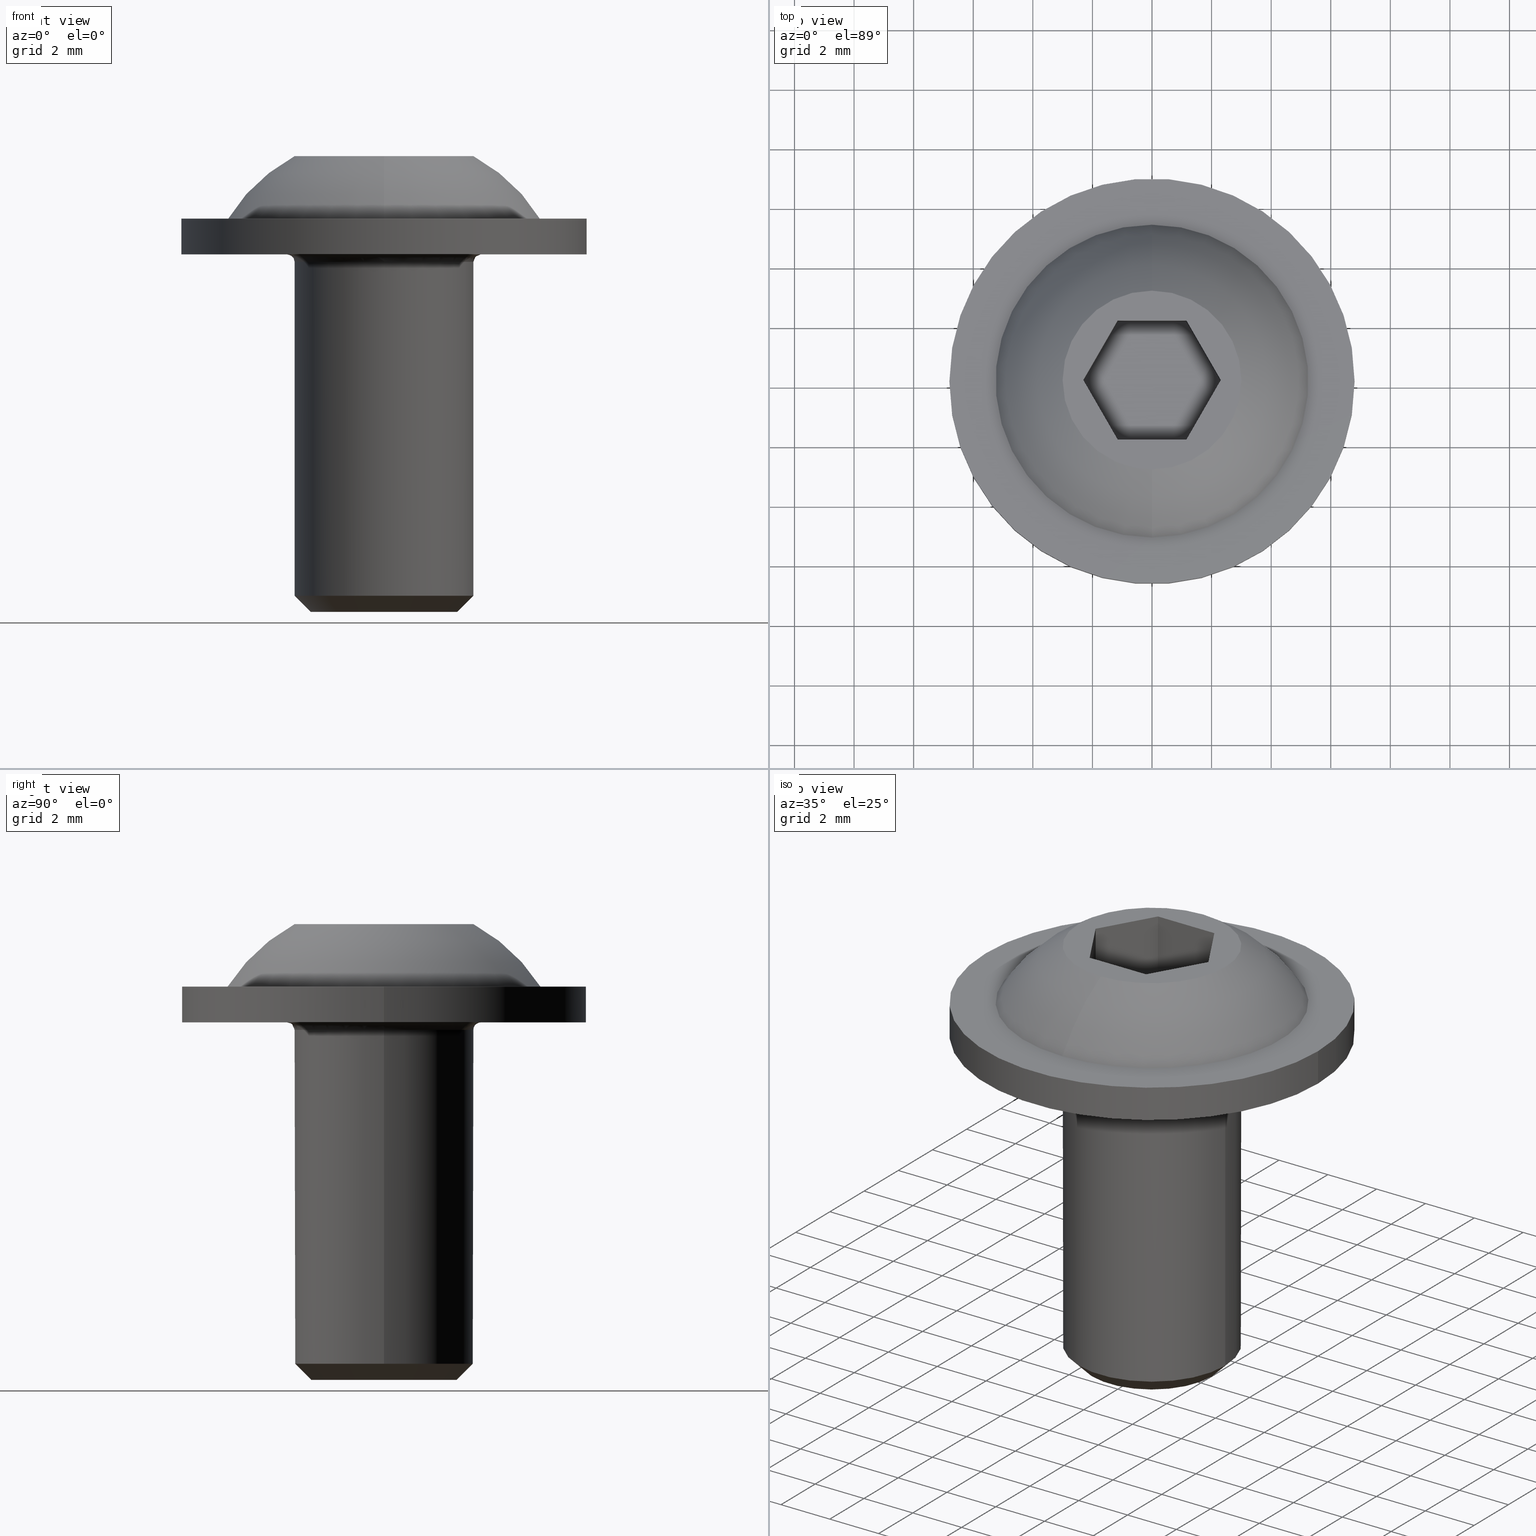
[diagram: canonical four-view strip — front | top / right | iso, engineering-drawing reading convention]
A machine part, canonical four-view strip (front | top / right | iso — engineering-drawing reading convention). The complete STEP part file that produces these views, byte-faithful:
ISO-10303-21;
HEADER;
FILE_DESCRIPTION (( 'STEP AP203' ),
    '1' );
FILE_NAME ('402150023_c_1.STEP',
    '2023-05-01T13:09:42',
    ( '' ),
    ( '' ),
    'SwSTEP 2.0',
    'SolidWorks 2014',
    '' );
FILE_SCHEMA (( 'CONFIG_CONTROL_DESIGN' ));
ENDSEC;

DATA;
#1 = CARTESIAN_POINT ( 'NONE',  ( -2.490460613355602000, -2.093683702841200300, 1.297060939091213400E-016 ) ) ;
#2 = ADVANCED_FACE ( 'NONE', ( #290 ), #719, .T. ) ;
#3 = CARTESIAN_POINT ( 'NONE',  ( -1.101677812400305000, -3.057730506523118000, 3.539575719711491900E-017 ) ) ;
#4 = ORIENTED_EDGE ( 'NONE', *, *, #588, .T. ) ;
#5 = DIRECTION ( 'NONE',  ( -2.220446049250310100E-016, -2.220446049250310100E-016, -1.000000000000000000 ) ) ;
#6 = CC_DESIGN_PERSON_AND_ORGANIZATION_ASSIGNMENT ( #790, #31, ( #851 ) ) ;
#7 = EDGE_CURVE ( 'NONE', #269, #458, #675, .T. ) ;
#8 = CARTESIAN_POINT ( 'NONE',  ( 3.006854025026426600E-017, -3.250000000000000400, -2.710505431213761100E-016 ) ) ;
#9 = ORIENTED_EDGE ( 'NONE', *, *, #745, .T. ) ;
#10 = LINE ( 'NONE', #789, #409 ) ;
#11 = EDGE_LOOP ( 'NONE', ( #456, #394 ) ) ;
#12 = CARTESIAN_POINT ( 'NONE',  ( 2.999999999938654800, 9.267969965380100800E-011, 3.300000000033706600 ) ) ;
#13 = TOROIDAL_SURFACE ( 'NONE', #44, 0.06223310761322799200, 6.150000000003363000 ) ;
#14 = EDGE_CURVE ( 'NONE', #286, #344, #410, .T. ) ;
#15 = CIRCLE ( 'NONE', #689, 2.999999999900905000 ) ;
#16 = AXIS2_PLACEMENT_3D ( 'NONE', #674, #540, #85 ) ;
#17 = CARTESIAN_POINT ( 'NONE',  ( -1.493154693746563500E-011, -5.249999999927985600, 1.200000000112147400 ) ) ;
#18 = EDGE_CURVE ( 'NONE', #319, #805, #562, .T. ) ;
#19 = VERTEX_POINT ( 'NONE', #701 ) ;
#20 = CARTESIAN_POINT ( 'NONE',  ( -0.05654535655185004300, -2.999467056437264300, -0.1035533905932739700 ) ) ;
#21 = VERTEX_POINT ( 'NONE', #825 ) ;
#22 = CARTESIAN_POINT ( 'NONE',  ( 0.1967331610649951900, -3.250186501965171900, -2.101755789629280800E-016 ) ) ;
#23 = DIRECTION ( 'NONE',  ( -0.8660254037844384900, -0.5000000000000004400, 3.033185711008722300E-016 ) ) ;
#24 = LINE ( 'NONE', #450, #556 ) ;
#25 = VECTOR ( 'NONE', #571, 1000.000000000000000 ) ;
#26 = CARTESIAN_POINT ( 'NONE',  ( 4.092601131822876200E-031, 4.092601131822876200E-031, 0.0000000000000000000 ) ) ;
#27 = CARTESIAN_POINT ( 'NONE',  ( 3.200251288869895700, -0.5671268512020346500, -1.472849495180529200E-015 ) ) ;
#28 = CARTESIAN_POINT ( 'NONE',  ( -2.904288596515201000, -0.7767474737008078800, 3.299999999999999800 ) ) ;
#29 = EDGE_CURVE ( 'NONE', #472, #196, #15, .T. ) ;
#30 = CARTESIAN_POINT ( 'NONE',  ( 1.918063414812118300, 3.250000000000000400, -2.160619109139920100E-015 ) ) ;
#31 = PERSON_AND_ORGANIZATION_ROLE ( 'creator' ) ;
#32 = UNCERTAINTY_MEASURE_WITH_UNIT (LENGTH_MEASURE( 1.000000000000000100E-005 ), #343, 'distance_accuracy_value', 'NONE');
#33 = DIRECTION ( 'NONE',  ( 0.8660254037844387100, -0.4999999999999998300, -8.127396617584076500E-017 ) ) ;
#34 = CARTESIAN_POINT ( 'NONE',  ( 0.9502853716049202100, -3.111346436906934800, -4.083264692362718200E-016 ) ) ;
#35 = CARTESIAN_POINT ( 'NONE',  ( -0.3904384431922701700, -2.981032248317740500, 3.300000000000001600 ) ) ;
#36 = ORIENTED_EDGE ( 'NONE', *, *, #272, .F. ) ;
#37 = ORIENTED_EDGE ( 'NONE', *, *, #823, .F. ) ;
#38 = CARTESIAN_POINT ( 'NONE',  ( -2.309401076758503800, -6.059524149247543800E-016, 3.299999999999999800 ) ) ;
#39 = PERSON_AND_ORGANIZATION_ROLE ( 'design_supplier' ) ;
#40 = TOROIDAL_SURFACE ( 'NONE', #566, 0.06223310761322799200, 6.150000000003363000 ) ;
#41 = CARTESIAN_POINT ( 'NONE',  ( -2.544353616684700200E-015, -2.544353616684700200E-015, -11.45875000000000000 ) ) ;
#42 = CARTESIAN_POINT ( 'NONE',  ( -2.653401398152601300E-016, 3.250000000000000000, -1.679501445324876700E-015 ) ) ;
#43 = PERSON_AND_ORGANIZATION_ROLE ( 'classification_officer' ) ;
#44 = AXIS2_PLACEMENT_3D ( 'NONE', #796, #202, #82 ) ;
#45 = CARTESIAN_POINT ( 'NONE',  ( 3.254592687514505900, -0.005911189601626224400, -1.609530619431447100E-015 ) ) ;
#46 =( BOUNDED_SURFACE ( )  B_SPLINE_SURFACE ( 3, 3, ( 
 ( #8, #340, #80, #534 ),
 ( #406, #136, #810, #65 ),
 ( #541, #604, #658, #606 ),
 ( #256, #199, #323, #668 ) ),
 .UNSPECIFIED., .F., .F., .T. ) 
 B_SPLINE_SURFACE_WITH_KNOTS ( ( 4, 4 ),
 ( 4, 4 ),
 ( 0.0000000000000000000, 1.000000000000000000 ),
 ( 0.0000000000000000000, 1.000000000000000000 ),
 .UNSPECIFIED. ) 
 GEOMETRIC_REPRESENTATION_ITEM ( )  RATIONAL_B_SPLINE_SURFACE ( (
 ( 1.000000000000000000, 0.3333333333333334300, 0.3333333333333334300, 1.000000000000000000),
 ( 0.8047378541243652700, 0.2682459513747885200, 0.2682459513747885200, 0.8047378541243652700),
 ( 0.8047378541243652700, 0.2682459513747885200, 0.2682459513747885200, 0.8047378541243652700),
 ( 1.000000000000000000, 0.3333333333333334300, 0.3333333333333334300, 1.000000000000000000) ) ) 
 REPRESENTATION_ITEM ( '' )  SURFACE ( )  );
#47 = CARTESIAN_POINT ( 'NONE',  ( -2.666028379883208700, 1.882998340417007400, -7.143108239424197600E-016 ) ) ;
#48 = ORIENTED_EDGE ( 'NONE', *, *, #646, .F. ) ;
#49 = CARTESIAN_POINT ( 'NONE',  ( 2.946741254294893400, 1.373020030122865700, -1.847358107469109000E-015 ) ) ;
#50 = SECURITY_CLASSIFICATION_LEVEL ( 'unclassified' ) ;
#51 = APPROVAL_PERSON_ORGANIZATION ( #299, #413, #829 ) ;
#52 = EDGE_LOOP ( 'NONE', ( #728, #153, #634, #513 ) ) ;
#53 = CYLINDRICAL_SURFACE ( 'NONE', #229, 6.799999999999999800 ) ;
#54 = CARTESIAN_POINT ( 'NONE',  ( 0.1955499360697035300, -3.000000000002694700, 3.299999999999999800 ) ) ;
#55 = CARTESIAN_POINT ( 'NONE',  ( 3.223141639275131100, -0.4225643411667913700, -1.510031499420600900E-015 ) ) ;
#56 = CARTESIAN_POINT ( 'NONE',  ( -6.799999999999999800, 2.664535259100380000E-016, 1.200000000000002800 ) ) ;
#57 = PRODUCT_DEFINITION_FORMATION_WITH_SPECIFIED_SOURCE ( 'ANY', '', #586, .NOT_KNOWN. ) ;
#58 = ORIENTED_EDGE ( 'NONE', *, *, #18, .T. ) ;
#59 = AXIS2_PLACEMENT_3D ( 'NONE', #647, #318, #777 ) ;
#60 = VERTEX_POINT ( 'NONE', #38 ) ;
#61 = LINE ( 'NONE', #149, #583 ) ;
#62 = EDGE_CURVE ( 'NONE', #344, #21, #475, .T. ) ;
#63 = CARTESIAN_POINT ( 'NONE',  ( -2.893871123635372000E-013, 0.06223310761449050300, -2.102964527557662100 ) ) ;
#64 = CARTESIAN_POINT ( 'NONE',  ( -2.893794910059332700E-013, -0.06223310761196548100, -2.102964527555556200 ) ) ;
#65 = CARTESIAN_POINT ( 'NONE',  ( -4.087893095138813400E-016, 3.103553390593274000, -1.639575714390682400E-015 ) ) ;
#66 = ORIENTED_EDGE ( 'NONE', *, *, #322, .T. ) ;
#67 = LOCAL_TIME ( 6, 9, 42.00000000000000000, #767 ) ;
#68 = EDGE_LOOP ( 'NONE', ( #408, #115, #536, #274, #819, #421 ) ) ;
#69 = CARTESIAN_POINT ( 'NONE',  ( -3.000000000000001300, -1.299932383957980000E-015, -5.854374999999999200 ) ) ;
#70 = AXIS2_PLACEMENT_3D ( 'NONE', #860, #784, #512 ) ;
#71 = FACE_OUTER_BOUND ( 'NONE', #582, .T. ) ;
#72 = VECTOR ( 'NONE', #386, 1000.000000000000000 ) ;
#73 = B_SPLINE_CURVE_WITH_KNOTS ( 'NONE', 3,
 ( #612, #615, #214, #28, #550, #755, #477, #748, #89, #221, #546, #295, #762, #210, #425, #35, #217, #358 ),
 .UNSPECIFIED., .F., .F.,
 ( 4, 2, 2, 2, 2, 2, 2, 2, 4 ),
 ( 1.260343839874001500E-014, 0.0005863434448674406500, 0.001172686889722277900, 0.001759030334577115300, 0.002345373779431952600, 0.002931717224286789600, 0.003518060669141627500, 0.004104404113996464000, 0.004690747558851300600 ),
 .UNSPECIFIED. ) ;
#74 = DIRECTION ( 'NONE',  ( -2.220446049250310100E-016, -2.220446049250310100E-016, -1.000000000000000000 ) ) ;
#75 = CARTESIAN_POINT ( 'NONE',  ( -0.1228867374868146000, -3.248396905618093000, -1.396030750766754400E-016 ) ) ;
#76 = ORIENTED_EDGE ( 'NONE', *, *, #404, .F. ) ;
#77 = ORIENTED_EDGE ( 'NONE', *, *, #332, .F. ) ;
#78 = FACE_OUTER_BOUND ( 'NONE', #93, .T. ) ;
#79 = EDGE_CURVE ( 'NONE', #580, #399, #201, .T. ) ;
#80 = CARTESIAN_POINT ( 'NONE',  ( -6.499999999999999100, 3.249999999999999600, -2.710505431213761100E-016 ) ) ;
#81 = DIRECTION ( 'NONE',  ( 1.000000000000000000, 1.643460219210439800E-032, 7.401486830834380200E-017 ) ) ;
#82 = DIRECTION ( 'NONE',  ( 6.312219209591701400E-029, 1.000000000000000000, -1.691991454407798400E-011 ) ) ;
#83 = EDGE_LOOP ( 'NONE', ( #754, #400, #275, #36 ) ) ;
#84 = VERTEX_POINT ( 'NONE', #368 ) ;
#85 = DIRECTION ( 'NONE',  ( -1.000000000000000000, 0.0000000000000000000, 2.891205793294678300E-016 ) ) ;
#86 = DIRECTION ( 'NONE',  ( -2.220446049250310100E-016, -2.220446049250310100E-016, -1.000000000000000000 ) ) ;
#87 = CARTESIAN_POINT ( 'NONE',  ( -1.732050807568880300, -0.9999999999999988900, 4.299999999999999800 ) ) ;
#88 = PLANE ( 'NONE',  #429 ) ;
#89 = CARTESIAN_POINT ( 'NONE',  ( -2.259048274448755200, -1.983690516843489300, 3.299999999999999800 ) ) ;
#90 = PLANE ( 'NONE',  #190 ) ;
#91 = CARTESIAN_POINT ( 'NONE',  ( 1.684863715533183800, -2.779863225531278700, -6.450396861094946900E-016 ) ) ;
#92 = AXIS2_PLACEMENT_3D ( 'NONE', #87, #23, #625 ) ;
#93 = EDGE_LOOP ( 'NONE', ( #163, #681, #361, #438, #4 ) ) ;
#94 = CARTESIAN_POINT ( 'NONE',  ( 2.933452651182261800, -1.399401093558826100, -1.228806291747248200E-015 ) ) ;
#95 = ORIENTED_EDGE ( 'NONE', *, *, #711, .F. ) ;
#96 = LINE ( 'NONE', #430, #401 ) ;
#97 = DIRECTION ( 'NONE',  ( 0.4999999999999998300, 0.8660254037844387100, 0.0000000000000000000 ) ) ;
#98 = CARTESIAN_POINT ( 'NONE',  ( 1.537499869225903200, -2.863827826953026600, -5.936744523255818000E-016 ) ) ;
#99 = DIRECTION ( 'NONE',  ( -2.220446049250310100E-016, -2.220446049250310100E-016, -1.000000000000000000 ) ) ;
#100 = CARTESIAN_POINT ( 'NONE',  ( 3.103415552632285300, -0.02924988791527054600, -1.718468688308226400E-015 ) ) ;
#101 = CARTESIAN_POINT ( 'NONE',  ( 3.216487811577978000, 0.4711032016250689100, -1.706988109351889700E-015 ) ) ;
#102 = ORIENTED_EDGE ( 'NONE', *, *, #62, .F. ) ;
#103 = EDGE_LOOP ( 'NONE', ( #298, #230, #160, #493 ) ) ;
#104 = CARTESIAN_POINT ( 'NONE',  ( -1.613231972766531400, 2.856832113945062100, -1.164313121732823700E-015 ) ) ;
#105 = CARTESIAN_POINT ( 'NONE',  ( 1.687097073173494000, 2.778385901959269600, -1.879714822712931200E-015 ) ) ;
#106 = LINE ( 'NONE', #183, #861 ) ;
#107 = ADVANCED_FACE ( 'NONE', ( #498 ), #40, .T. ) ;
#108 = CARTESIAN_POINT ( 'NONE',  ( -3.000844184550266000, 1.248302229191006200, -4.990359336078360800E-016 ) ) ;
#109 = CARTESIAN_POINT ( 'NONE',  ( 2.309401076758499800, 8.741572280825910300E-016, 3.300000000000000300 ) ) ;
#110 = EDGE_CURVE ( 'NONE', #636, #370, #698, .T. ) ;
#111 = CARTESIAN_POINT ( 'NONE',  ( 0.3941608793149307700, -2.980447606564370100, 3.300000000000001200 ) ) ;
#112 = CARTESIAN_POINT ( 'NONE',  ( 1.968074643917910400, 2.596146169307072000, -1.901639026963269000E-015 ) ) ;
#113 = CARTESIAN_POINT ( 'NONE',  ( -3.250000000000000900, -0.2023733455774737200, -1.215975441276661900E-016 ) ) ;
#114 = AXIS2_PLACEMENT_3D ( 'NONE', #710, #775, #589 ) ;
#115 = ORIENTED_EDGE ( 'NONE', *, *, #14, .T. ) ;
#116 = PLANE ( 'NONE',  #158 ) ;
#117 = CARTESIAN_POINT ( 'NONE',  ( -5.551115123125941700E-017, -5.551115123125941700E-017, -0.2500000000000002200 ) ) ;
#118 = CARTESIAN_POINT ( 'NONE',  ( 1.829057877067161300, -2.385942795759868200, 3.300000000000001200 ) ) ;
#119 = CC_DESIGN_DATE_AND_TIME_ASSIGNMENT ( #317, #622, ( #851 ) ) ;
#120 = CARTESIAN_POINT ( 'NONE',  ( -2.758571727578951000E-015, -2.700840130280119700E-015, -12.00000000011414000 ) ) ;
#121 = CARTESIAN_POINT ( 'NONE',  ( -1.154700538379249900, -2.000000000000000000, 3.300000000000000300 ) ) ;
#122 = ORIENTED_EDGE ( 'NONE', *, *, #711, .T. ) ;
#123 = DIRECTION ( 'NONE',  ( -2.220446049250310100E-016, -2.220446049250310100E-016, -1.000000000000000000 ) ) ;
#124 = CALENDAR_DATE ( 2023, 1, 5 ) ;
#125 = DIRECTION ( 'NONE',  ( 0.4999999999999996100, -0.8660254037844388200, 3.755786496842900500E-016 ) ) ;
#126 = EDGE_LOOP ( 'NONE', ( #766, #356, #331, #37, #526 ) ) ;
#127 = EDGE_LOOP ( 'NONE', ( #445, #184, #567, #779, #233 ) ) ;
#128 = CARTESIAN_POINT ( 'NONE',  ( -2.840515835155971400, -1.594214897020602900, 9.652961367491689300E-017 ) ) ;
#129 = CARTESIAN_POINT ( 'NONE',  ( -2.965066354497637700, -1.354322696876450300, 7.091861572973987700E-017 ) ) ;
#130 = DIRECTION ( 'NONE',  ( 1.000000000000000000, 0.0000000000000000000, 0.0000000000000000000 ) ) ;
#131 = ORIENTED_EDGE ( 'NONE', *, *, #255, .F. ) ;
#132 = CARTESIAN_POINT ( 'NONE',  ( 6.799999999999999800, 9.659865863752194100E-016, -1.509903313490211100E-015 ) ) ;
#133 = AXIS2_PLACEMENT_3D ( 'NONE', #551, #154, #620 ) ;
#134 = CIRCLE ( 'NONE', #218, 5.249999999985135400 ) ;
#135 = FACE_OUTER_BOUND ( 'NONE', #52, .T. ) ;
#136 = CARTESIAN_POINT ( 'NONE',  ( -6.207106781186546100, -3.103553390593274000, 1.116933431521413100E-015 ) ) ;
#137 = EDGE_LOOP ( 'NONE', ( #259, #405, #768, #76 ) ) ;
#138 = APPROVAL_DATE_TIME ( #162, #560 ) ;
#139 = ORIENTED_EDGE ( 'NONE', *, *, #661, .T. ) ;
#140 = AXIS2_PLACEMENT_3D ( 'NONE', #733, #727, #527 ) ;
#141 = VECTOR ( 'NONE', #125, 1000.000000000000100 ) ;
#142 = DIRECTION ( 'NONE',  ( 7.038531937459531500E-017, -4.063698308792037600E-017, 1.000000000000000000 ) ) ;
#143 = CARTESIAN_POINT ( 'NONE',  ( 1.713660189567076700, -3.032838619415605800, -0.1035533905932743300 ) ) ;
#144 = CARTESIAN_POINT ( 'NONE',  ( 2.136977715718844500, -2.458878850225933600, -8.167020094635784000E-016 ) ) ;
#145 = DIRECTION ( 'NONE',  ( 0.0000000000000000000, 0.0000000000000000000, 1.000000000000000000 ) ) ;
#146 = CARTESIAN_POINT ( 'NONE',  ( 3.267932724048863100, 1.887348132786133700, -2.157780811103958400E-015 ) ) ;
#147 =( NAMED_UNIT ( * ) SI_UNIT ( $, .STERADIAN. ) SOLID_ANGLE_UNIT ( ) );
#148 = CIRCLE ( 'NONE', #140, 3.000000000000000000 ) ;
#149 = CARTESIAN_POINT ( 'NONE',  ( 1.154700538379249900, -2.000000000000000000, 4.299999999999999800 ) ) ;
#150 = DIRECTION ( 'NONE',  ( -0.4999999999999998300, 0.8660254037844387100, 0.0000000000000000000 ) ) ;
#151 = DIRECTION ( 'NONE',  ( -1.000000000000000000, 0.0000000000000000000, 2.168404344971008900E-016 ) ) ;
#152 = EDGE_CURVE ( 'NONE', #84, #399, #809, .T. ) ;
#153 = ORIENTED_EDGE ( 'NONE', *, *, #522, .T. ) ;
#154 = DIRECTION ( 'NONE',  ( -2.220446049250310100E-016, -2.220446049250310100E-016, -1.000000000000000000 ) ) ;
#155 = DIRECTION ( 'NONE',  ( -0.4999999999999998300, -0.8660254037844387100, 0.0000000000000000000 ) ) ;
#156 = APPLICATION_CONTEXT ( 'configuration controlled 3d designs of mechanical parts and assemblies' ) ;
#157 = CARTESIAN_POINT ( 'NONE',  ( 1.713660189567076900, -3.032838619415606700, -0.2500000000000004400 ) ) ;
#158 = AXIS2_PLACEMENT_3D ( 'NONE', #858, #578, #656 ) ;
#159 = CARTESIAN_POINT ( 'NONE',  ( -1.170250045657933000, 3.032123219984638000, -1.301597313114010500E-015 ) ) ;
#160 = ORIENTED_EDGE ( 'NONE', *, *, #753, .F. ) ;
#161 = DIRECTION ( 'NONE',  ( 6.312219209591701400E-029, 1.000000000000000000, -1.691991454407798400E-011 ) ) ;
#162 = DATE_AND_TIME ( #692, #336 ) ;
#163 = ORIENTED_EDGE ( 'NONE', *, *, #721, .F. ) ;
#164 = LINE ( 'NONE', #820, #738 ) ;
#165 = CARTESIAN_POINT ( 'NONE',  ( -2.456649595186194600, 2.139597013518137900, -8.177786044631791700E-016 ) ) ;
#166 = LINE ( 'NONE', #177, #141 ) ;
#167 = DIRECTION ( 'NONE',  ( -4.433230403294821800E-012, 1.691991454407798400E-011, 1.000000000000000000 ) ) ;
#168 = CARTESIAN_POINT ( 'NONE',  ( -2.860516041550138100, 1.550648110384665900, -5.973293124205192200E-016 ) ) ;
#169 = CARTESIAN_POINT ( 'NONE',  ( 3.234784899098842800, 0.3151275379656878800, -1.676417324306571800E-015 ) ) ;
#170 = CARTESIAN_POINT ( 'NONE',  ( 4.138776863314750400E-016, 2.708944180085379900E-016, 1.220000000000000000 ) ) ;
#171 = CARTESIAN_POINT ( 'NONE',  ( 1.593432502515446300, 2.833224934025626100, -1.871093821335337100E-015 ) ) ;
#172 = ORIENTED_EDGE ( 'NONE', *, *, #531, .F. ) ;
#173 = CARTESIAN_POINT ( 'NONE',  ( -3.012304144221769100, 1.220312962097978700, -4.902764456363075300E-016 ) ) ;
#174 = VECTOR ( 'NONE', #150, 1000.000000000000100 ) ;
#175 = CARTESIAN_POINT ( 'NONE',  ( 3.000000000006811000, -0.1980907184211426200, 3.300000000000001600 ) ) ;
#176 = AXIS2_PLACEMENT_3D ( 'NONE', #723, #123, #587 ) ;
#177 = CARTESIAN_POINT ( 'NONE',  ( 1.154700538379249900, 2.000000000000000000, 3.299999999999999400 ) ) ;
#178 = CARTESIAN_POINT ( 'NONE',  ( 1.504132556393570400, -2.603029195974748200, 3.300000000000001200 ) ) ;
#179 = EDGE_CURVE ( 'NONE', #21, #180, #518, .T. ) ;
#180 = VERTEX_POINT ( 'NONE', #442 ) ;
#181 = ORIENTED_EDGE ( 'NONE', *, *, #522, .F. ) ;
#182 = DIRECTION ( 'NONE',  ( -2.220446049250310100E-016, -2.220446049250310100E-016, -1.000000000000000000 ) ) ;
#183 = CARTESIAN_POINT ( 'NONE',  ( -6.799999999999999800, 1.332267629550190000E-016, 0.6000000000000014200 ) ) ;
#184 = ORIENTED_EDGE ( 'NONE', *, *, #849, .F. ) ;
#185 = DIRECTION ( 'NONE',  ( 2.891205793198703000E-016, 2.891205793198703000E-016, 1.000000000000000000 ) ) ;
#186 = ADVANCED_FACE ( 'NONE', ( #135 ), #309, .T. ) ;
#187 = CARTESIAN_POINT ( 'NONE',  ( -2.602085213965211000E-015, -2.544353616666379700E-015, -11.45874999991747200 ) ) ;
#188 = ORIENTED_EDGE ( 'NONE', *, *, #799, .T. ) ;
#189 = CARTESIAN_POINT ( 'NONE',  ( -3.109449503229855200, -0.9458636313520818500, 1.228198311541131200E-017 ) ) ;
#190 = AXIS2_PLACEMENT_3D ( 'NONE', #285, #33, #97 ) ;
#191 = ORIENTED_EDGE ( 'NONE', *, *, #726, .F. ) ;
#192 = VECTOR ( 'NONE', #155, 1000.000000000000100 ) ;
#193 = CARTESIAN_POINT ( 'NONE',  ( -1.875373374033352700, -2.656761644958915100, 1.181577100589117600E-016 ) ) ;
#194 = EDGE_CURVE ( 'NONE', #19, #848, #374, .T. ) ;
#195 = CARTESIAN_POINT ( 'NONE',  ( -1.150383928426295300, -3.039715858737002100, 4.221063213700700100E-017 ) ) ;
#196 = VERTEX_POINT ( 'NONE', #379 ) ;
#197 = FACE_OUTER_BOUND ( 'NONE', #83, .T. ) ;
#198 = EDGE_LOOP ( 'NONE', ( #593, #831, #329, #172 ) ) ;
#199 = CARTESIAN_POINT ( 'NONE',  ( -5.999999999999998200, -3.000000000000000000, -0.2499999999999987200 ) ) ;
#200 = VECTOR ( 'NONE', #142, 1000.000000000000000 ) ;
#201 = CIRCLE ( 'NONE', #795, 5.249999999985135400 ) ;
#202 = DIRECTION ( 'NONE',  ( 4.433230403294821800E-012, -1.691991454407798400E-011, -1.000000000000000000 ) ) ;
#203 = CARTESIAN_POINT ( 'NONE',  ( -1.500000000000000000, 2.000000000000000000, 3.299999999999999400 ) ) ;
#204 = CARTESIAN_POINT ( 'NONE',  ( 1.921413557079327800, -2.633934396908540700, -7.299670113193950600E-016 ) ) ;
#205 = EDGE_LOOP ( 'NONE', ( #213, #390, #95, #77, #706, #693 ) ) ;
#206 = CARTESIAN_POINT ( 'NONE',  ( 3.086153048048396700, -1.860803067134629800, -1.307949140218933200E-015 ) ) ;
#207 = COORDINATED_UNIVERSAL_TIME_OFFSET ( 8, 0, .BEHIND. ) ;
#208 = ORIENTED_EDGE ( 'NONE', *, *, #194, .F. ) ;
#209 = CARTESIAN_POINT ( 'NONE',  ( -1.732050807568880500, 1.000000000000000200, 1.219999999999998000 ) ) ;
#210 = CARTESIAN_POINT ( 'NONE',  ( -0.9669629046216841100, -2.846609005586142600, 3.300000000000000700 ) ) ;
#211 = LINE ( 'NONE', #69, #598 ) ;
#212 = B_SPLINE_CURVE_WITH_KNOTS ( 'NONE', 3,
 ( #388, #113, #446, #645, #712, #189, #327, #660, #129, #128, #599, #267, #732, #1, #261, #523, #798, #193, #800, #734, #664, #195, #3, #265, #521, #325, #466, #794, #396, #594, #75, #397, #391 ),
 .UNSPECIFIED., .F., .F.,
 ( 4, 1, 2, 2, 1, 1, 2, 2, 1, 1, 2, 2, 2, 2, 1, 1, 1, 2, 2, 1, 4 ),
 ( 0.0000000000000000000, 0.04163609198902572300, 0.06245413798353858400, 0.06765864948216680800, 0.07286316098079501100, 0.08327218397805145900, 0.1249082759670772000, 0.1353172989643336200, 0.1457263219615901100, 0.1665443679561030600, 0.1873624139506160600, 0.2081804599451289900, 0.2498165519341549700, 0.2550210634327832500, 0.2602255749314114600, 0.2706345979286680100, 0.2914526439231811000, 0.3122706899176941300, 0.3174752014163224100, 0.3226797129149506200, 0.3330887359122071700 ),
 .UNSPECIFIED. ) ;
#213 = ORIENTED_EDGE ( 'NONE', *, *, #616, .F. ) ;
#214 = CARTESIAN_POINT ( 'NONE',  ( -2.980539409890649200, -0.3932095062901827000, 3.299999999999999800 ) ) ;
#215 = CARTESIAN_POINT ( 'NONE',  ( -1.500000000000000000, 7.327471962526029800E-016, 3.299999999999999800 ) ) ;
#216 = CARTESIAN_POINT ( 'NONE',  ( 2.595009530792326200, -1.969710820355233400, -1.027022624819259700E-015 ) ) ;
#217 = CARTESIAN_POINT ( 'NONE',  ( -0.1957188730640716500, -2.999999999999505300, 3.300000000000000700 ) ) ;
#218 = AXIS2_PLACEMENT_3D ( 'NONE', #841, #296, #508 ) ;
#219 = CARTESIAN_POINT ( 'NONE',  ( 3.120678057216172500, 1.802303291304088800, -2.128988236397519400E-015 ) ) ;
#220 = CARTESIAN_POINT ( 'NONE',  ( 0.3927850192817486400, -3.232258485547816900, -2.576886556879665800E-016 ) ) ;
#221 = CARTESIAN_POINT ( 'NONE',  ( -1.982084707617733700, -2.260457339728645400, 3.300000000000000300 ) ) ;
#222 = ORIENTED_EDGE ( 'NONE', *, *, #404, .T. ) ;
#223 = EDGE_LOOP ( 'NONE', ( #122, #382, #631, #337, #642 ) ) ;
#224 = CARTESIAN_POINT ( 'NONE',  ( 2.980059080937395200, 1.297228728080407800, -1.837927101404134100E-015 ) ) ;
#225 = APPROVAL_ROLE ( '' ) ;
#226 = PLANE ( 'NONE',  #548 ) ;
#227 = DIRECTION ( 'NONE',  ( -2.220446049250310100E-016, -2.220446049250310100E-016, -1.000000000000000000 ) ) ;
#228 = CARTESIAN_POINT ( 'NONE',  ( -2.893871123635372000E-013, 1.262515800332677800E-012, -2.102964527556609100 ) ) ;
#229 = AXIS2_PLACEMENT_3D ( 'NONE', #667, #5, #530 ) ;
#230 = ORIENTED_EDGE ( 'NONE', *, *, #676, .T. ) ;
#231 = CARTESIAN_POINT ( 'NONE',  ( 1.731800938332086000, 2.750747483404941900, -1.883504113062044100E-015 ) ) ;
#232 = LOCAL_TIME ( 6, 9, 42.00000000000000000, #207 ) ;
#233 = ORIENTED_EDGE ( 'NONE', *, *, #601, .F. ) ;
#234 = FACE_OUTER_BOUND ( 'NONE', #198, .T. ) ;
#235 = CARTESIAN_POINT ( 'NONE',  ( -3.250000000000000400, -2.168404344971008400E-016, -2.187919984075746200E-016 ) ) ;
#236 = ORIENTED_EDGE ( 'NONE', *, *, #29, .F. ) ;
#237 = CARTESIAN_POINT ( 'NONE',  ( 2.377931717938467100, 2.218404081985574400, -1.908769986497034400E-015 ) ) ;
#238 = CARTESIAN_POINT ( 'NONE',  ( -1.154700538379251700, 2.000000000000000900, 3.299999999999999800 ) ) ;
#239 = CARTESIAN_POINT ( 'NONE',  ( -6.799999999999999800, 4.092601131822876200E-031, 1.509903313490210900E-015 ) ) ;
#240 = B_SPLINE_CURVE_WITH_KNOTS ( 'NONE', 3,
 ( #773, #54, #111, #375, #249, #312, #178, #118, #716, #590, #460, #648, #850, #584, #308, #781, #175, #254 ),
 .UNSPECIFIED., .F., .F.,
 ( 4, 2, 2, 2, 2, 2, 2, 2, 4 ),
 ( 0.004690747558851300600, 0.005276584894768994100, 0.005862422230686687600, 0.006448259566604380200, 0.007034096902522073700, 0.007619934238439767100, 0.008205771574357459800, 0.008791608910275153200, 0.009377446246192846700 ),
 .UNSPECIFIED. ) ;
#241 = EDGE_CURVE ( 'NONE', #474, #458, #509, .T. ) ;
#242 = CARTESIAN_POINT ( 'NONE',  ( -5.551115123125941700E-017, -5.551115123125941700E-017, -0.2500000000000002200 ) ) ;
#243 = ORIENTED_EDGE ( 'NONE', *, *, #575, .F. ) ;
#244 = DIRECTION ( 'NONE',  ( 0.4999999999999998300, 0.8660254037844387100, 0.0000000000000000000 ) ) ;
#245 = PERSON_AND_ORGANIZATION ( #253, #731 ) ;
#246 = DIRECTION ( 'NONE',  ( 4.433230403294819400E-012, 0.0000000000000000000, -1.000000000000000000 ) ) ;
#247 = VERTEX_POINT ( 'NONE', #389 ) ;
#248 = FACE_BOUND ( 'NONE', #525, .T. ) ;
#249 = CARTESIAN_POINT ( 'NONE',  ( 0.9655615807419071200, -2.847151163701540500, 3.300000000000001200 ) ) ;
#250 = DIRECTION ( 'NONE',  ( -2.220446049250310100E-016, -2.220446049250310100E-016, -1.000000000000000000 ) ) ;
#251 = AXIS2_PLACEMENT_3D ( 'NONE', #454, #720, #776 ) ;
#252 = DIRECTION ( 'NONE',  ( -1.000000000000000000, 0.0000000000000000000, 2.232180943352509300E-016 ) ) ;
#253 = PERSON ( 'UNSPECIFIED', 'UNSPECIFIED', 'UNSPECIFIED', ('UNSPECIFIED'), ('UNSPECIFIED'), ('UNSPECIFIED') ) ;
#254 = CARTESIAN_POINT ( 'NONE',  ( 2.999999999938654800, 9.267969965380100800E-011, 3.300000000033706600 ) ) ;
#255 = EDGE_CURVE ( 'NONE', #474, #636, #166, .T. ) ;
#256 = CARTESIAN_POINT ( 'NONE',  ( -2.775557561562916600E-017, -3.000000000000000000, -0.2500000000000000600 ) ) ;
#257 = EDGE_LOOP ( 'NONE', ( #533, #730, #597, #569 ) ) ;
#258 = COORDINATED_UNIVERSAL_TIME_OFFSET ( 8, 0, .BEHIND. ) ;
#259 = ORIENTED_EDGE ( 'NONE', *, *, #273, .F. ) ;
#260 = CONICAL_SURFACE ( 'NONE', #740, 3.000000000099587000, 0.7853981634499595000 ) ;
#261 = CARTESIAN_POINT ( 'NONE',  ( -2.304114913775619800, -2.300503526575190100, 1.342522627180838500E-016 ) ) ;
#262 = CARTESIAN_POINT ( 'NONE',  ( 1.154700538379251200, 2.000000000000000900, 1.219999999999998400 ) ) ;
#263 = ADVANCED_FACE ( 'NONE', ( #338 ), #853, .T. ) ;
#264 = CARTESIAN_POINT ( 'NONE',  ( 6.661338147750930400E-017, 2.000000000000000000, 4.299999999999999800 ) ) ;
#265 = CARTESIAN_POINT ( 'NONE',  ( -1.028396175662110700, -3.083848150378831300, 2.492324703083780900E-017 ) ) ;
#266 = DESIGN_CONTEXT ( 'detailed design', #428, 'design' ) ;
#267 = CARTESIAN_POINT ( 'NONE',  ( -2.658412735929534900, -1.870501263830324700, 1.174425001159959200E-016 ) ) ;
#268 = AXIS2_PLACEMENT_3D ( 'NONE', #354, #822, #151 ) ;
#269 = VERTEX_POINT ( 'NONE', #846 ) ;
#270 = SHAPE_DEFINITION_REPRESENTATION ( #528, #614 ) ;
#271 = FACE_OUTER_BOUND ( 'NONE', #68, .T. ) ;
#272 = EDGE_CURVE ( 'NONE', #600, #684, #106, .T. ) ;
#273 = EDGE_CURVE ( 'NONE', #286, #316, #659, .T. ) ;
#274 = ORIENTED_EDGE ( 'NONE', *, *, #179, .T. ) ;
#275 = ORIENTED_EDGE ( 'NONE', *, *, #487, .F. ) ;
#276 = AXIS2_PLACEMENT_3D ( 'NONE', #553, #145, #412 ) ;
#277 = CONICAL_SURFACE ( 'NONE', #303, 3.000000000099587000, 0.7853981634499595000 ) ;
#278 = DIRECTION ( 'NONE',  ( 0.0000000000000000000, -1.000000000000000000, 2.168404344971006900E-016 ) ) ;
#279 = CARTESIAN_POINT ( 'NONE',  ( 2.455018695421591800, -2.141507776417122400, -9.577918278501550400E-016 ) ) ;
#280 = VECTOR ( 'NONE', #783, 1000.000000000000200 ) ;
#281 = CARTESIAN_POINT ( 'NONE',  ( 3.016553283737411800, 1.742167507187200300, -0.1035533905932756900 ) ) ;
#282 = CARTESIAN_POINT ( 'NONE',  ( 2.898650958359057400, -1.470079708051276200, -1.205384958581972600E-015 ) ) ;
#283 = CARTESIAN_POINT ( 'NONE',  ( 2.458749999846074500, -2.700840130280119700E-015, -12.00000000011414000 ) ) ;
#284 = DIRECTION ( 'NONE',  ( 0.0000000000000000000, -1.000000000000000000, 2.220446049250310100E-016 ) ) ;
#285 = CARTESIAN_POINT ( 'NONE',  ( 1.732050807568880300, -0.9999999999999988900, 4.299999999999999800 ) ) ;
#286 = VERTEX_POINT ( 'NONE', #444 ) ;
#287 = APPROVAL_ROLE ( '' ) ;
#288 = FACE_BOUND ( 'NONE', #691, .T. ) ;
#289 = AXIS2_PLACEMENT_3D ( 'NONE', #479, #86, #821 ) ;
#290 = FACE_OUTER_BOUND ( 'NONE', #223, .T. ) ;
#291 = DIRECTION ( 'NONE',  ( 0.8660254037844387100, 0.4999999999999998300, -3.033185711008719400E-016 ) ) ;
#292 = APPROVAL_STATUS ( 'not_yet_approved' ) ;
#293 = CARTESIAN_POINT ( 'NONE',  ( 1.856465205364333600, -3.285575171033573200, -6.957523522490052500E-016 ) ) ;
#294 = CARTESIAN_POINT ( 'NONE',  ( 3.212088473706373300, -0.4957875259074479600, -1.491318390511623300E-015 ) ) ;
#295 = CARTESIAN_POINT ( 'NONE',  ( -1.502830217422814500, -2.603927939441176100, 3.300000000000000700 ) ) ;
#296 = DIRECTION ( 'NONE',  ( 4.433230403294821800E-012, -1.691991454407798400E-011, -1.000000000000000000 ) ) ;
#297 = DIRECTION ( 'NONE',  ( -0.4999999999999992200, -0.8660254037844390400, 0.0000000000000000000 ) ) ;
#298 = ORIENTED_EDGE ( 'NONE', *, *, #663, .T. ) ;
#299 = PERSON_AND_ORGANIZATION ( #253, #731 ) ;
#300 = ORIENTED_EDGE ( 'NONE', *, *, #255, .T. ) ;
#301 = CARTESIAN_POINT ( 'NONE',  ( 2.664535259100380000E-016, 2.664535259100380000E-016, 1.200000000000001500 ) ) ;
#302 = DIRECTION ( 'NONE',  ( 0.5000000000000003300, -0.8660254037844383700, 0.0000000000000000000 ) ) ;
#303 = AXIS2_PLACEMENT_3D ( 'NONE', #187, #185, #462 ) ;
#304 = CARTESIAN_POINT ( 'NONE',  ( -1.493218987703518600E-011, 5.250000000042283500, 1.199999999934488600 ) ) ;
#305 = DIRECTION ( 'NONE',  ( 0.7071067812236787600, 2.044391222069280500E-016, 0.7071067811494162700 ) ) ;
#306 = CARTESIAN_POINT ( 'NONE',  ( 3.245860915477729600, 0.1914601940857455800, -1.651417027473615400E-015 ) ) ;
#307 = LINE ( 'NONE', #852, #507 ) ;
#308 = CARTESIAN_POINT ( 'NONE',  ( 2.903327572995810300, -0.7804148245162515500, 3.300000000000000300 ) ) ;
#309 = CYLINDRICAL_SURFACE ( 'NONE', #402, 6.799999999999999800 ) ;
#310 = DIRECTION ( 'NONE',  ( 1.000000000000000000, 1.224647549246149000E-016, 4.433230403294819400E-012 ) ) ;
#311 = APPROVAL ( #292, 'UNSPECIFIED' ) ;
#312 = CARTESIAN_POINT ( 'NONE',  ( 1.328543561221356800, -2.696952154026665700, 3.300000000000001200 ) ) ;
#313 = DIRECTION ( 'NONE',  ( 1.000000000000000000, 0.0000000000000000000, 0.0000000000000000000 ) ) ;
#314 = EDGE_CURVE ( 'NONE', #654, #704, #772, .T. ) ;
#315 = CARTESIAN_POINT ( 'NONE',  ( 2.309401076758504300, -1.951563910473908000E-015, 4.299999999999999800 ) ) ;
#316 = VERTEX_POINT ( 'NONE', #238 ) ;
#317 = DATE_AND_TIME ( #124, #67 ) ;
#318 = DIRECTION ( 'NONE',  ( -2.220446049250310100E-016, -2.220446049250310100E-016, -1.000000000000000000 ) ) ;
#319 = VERTEX_POINT ( 'NONE', #650 ) ;
#320 = ADVANCED_FACE ( 'NONE', ( #463 ), #713, .F. ) ;
#321 = LINE ( 'NONE', #315, #200 ) ;
#322 = EDGE_CURVE ( 'NONE', #495, #60, #350, .T. ) ;
#323 = CARTESIAN_POINT ( 'NONE',  ( -6.000000000000000000, 2.999999999999999100, -0.2500000000000000600 ) ) ;
#324 = CC_DESIGN_DATE_AND_TIME_ASSIGNMENT ( #653, #572, ( #651 ) ) ;
#325 = CARTESIAN_POINT ( 'NONE',  ( -0.6049024476083110200, -3.198388002759891900, -4.367829423297338500E-017 ) ) ;
#326 = ADVANCED_FACE ( 'NONE', ( #234 ), #722, .F. ) ;
#327 = CARTESIAN_POINT ( 'NONE',  ( -3.093223778468891600, -0.9977385870205972600, 2.019770250816011700E-017 ) ) ;
#328 =( GEOMETRIC_REPRESENTATION_CONTEXT ( 3 ) GLOBAL_UNCERTAINTY_ASSIGNED_CONTEXT ( ( #32 ) ) GLOBAL_UNIT_ASSIGNED_CONTEXT ( ( #343, #483, #147 ) ) REPRESENTATION_CONTEXT ( 'NONE', 'WORKASPACE' ) );
#329 = ORIENTED_EDGE ( 'NONE', *, *, #273, .T. ) ;
#330 = FACE_BOUND ( 'NONE', #11, .T. ) ;
#331 = ORIENTED_EDGE ( 'NONE', *, *, #437, .T. ) ;
#332 = EDGE_CURVE ( 'NONE', #539, #672, #362, .T. ) ;
#333 = PLANE ( 'NONE',  #532 ) ;
#334 = AXIS2_PLACEMENT_3D ( 'NONE', #41, #769, #630 ) ;
#335 = VERTEX_POINT ( 'NONE', #381 ) ;
#336 = LOCAL_TIME ( 6, 9, 42.00000000000000000, #258 ) ;
#337 = ORIENTED_EDGE ( 'NONE', *, *, #753, .T. ) ;
#338 = FACE_OUTER_BOUND ( 'NONE', #669, .T. ) ;
#339 = CARTESIAN_POINT ( 'NONE',  ( -5.551115123125800000E-017, -3.250000000000000400, -0.2500000000000002800 ) ) ;
#340 = CARTESIAN_POINT ( 'NONE',  ( -6.499999999999999100, -3.250000000000000000, 1.172239388891325200E-015 ) ) ;
#341 = DIRECTION ( 'NONE',  ( -1.000000000000000000, 0.0000000000000000000, 2.220446049250310100E-016 ) ) ;
#342 = CARTESIAN_POINT ( 'NONE',  ( 2.967581888453897100, -1.327206727355563400, -1.252414874275037700E-015 ) ) ;
#343 =( LENGTH_UNIT ( ) NAMED_UNIT ( * ) SI_UNIT ( .MILLI., .METRE. ) );
#344 = VERTEX_POINT ( 'NONE', #644 ) ;
#345 = FACE_OUTER_BOUND ( 'NONE', #137, .T. ) ;
#346 = CARTESIAN_POINT ( 'NONE',  ( -0.06125746959783753100, -3.249422644473702900, -2.779598520082842700E-016 ) ) ;
#347 = LINE ( 'NONE', #639, #857 ) ;
#348 = CARTESIAN_POINT ( 'NONE',  ( 0.6125768487453733300, -3.191846746827698300, -3.154654541854092700E-016 ) ) ;
#349 = CARTESIAN_POINT ( 'NONE',  ( -4.250000000000000000, 1.232595164407829900E-032, 5.551115123125790100E-017 ) ) ;
#350 = LINE ( 'NONE', #121, #280 ) ;
#351 = DIRECTION ( 'NONE',  ( -1.922962686383560100E-016, 1.000000000000000000, -2.220446049250310100E-016 ) ) ;
#352 = CC_DESIGN_PERSON_AND_ORGANIZATION_ASSIGNMENT ( #744, #39, ( #57 ) ) ;
#353 = CARTESIAN_POINT ( 'NONE',  ( -0.05654535655185007100, -2.999467056437264300, -0.2500000000000000600 ) ) ;
#354 = CARTESIAN_POINT ( 'NONE',  ( -5.551115123125941700E-017, -5.551115123125941700E-017, -0.2500000000000002200 ) ) ;
#355 = CARTESIAN_POINT ( 'NONE',  ( -3.800756725772969700E-016, 3.103553390593274000, -1.724994074290065500E-015 ) ) ;
#356 = ORIENTED_EDGE ( 'NONE', *, *, #18, .F. ) ;
#357 = CARTESIAN_POINT ( 'NONE',  ( -2.424197372409084100E-011, 9.268021389219078900E-011, 3.300000000054113900 ) ) ;
#358 = CARTESIAN_POINT ( 'NONE',  ( -2.424160632991540900E-011, -3.000000000001101300, 3.300000000000000700 ) ) ;
#359 = VECTOR ( 'NONE', #182, 1000.000000000000000 ) ;
#360 = EDGE_CURVE ( 'NONE', #269, #636, #321, .T. ) ;
#361 = ORIENTED_EDGE ( 'NONE', *, *, #332, .T. ) ;
#362 = CIRCLE ( 'NONE', #749, 3.000000000000000000 ) ;
#363 = CARTESIAN_POINT ( 'NONE',  ( -1.148196924331913900, 3.040530527095434400, -1.308360886912110300E-015 ) ) ;
#364 = ORIENTED_EDGE ( 'NONE', *, *, #110, .T. ) ;
#365 = CARTESIAN_POINT ( 'NONE',  ( 2.453829869173531600, 2.133936248549697100, -1.906867134798422300E-015 ) ) ;
#366 = CC_DESIGN_SECURITY_CLASSIFICATION ( #651, ( #57 ) ) ;
#367 = DIRECTION ( 'NONE',  ( 7.038531937459531500E-017, -4.063698308792037600E-017, 1.000000000000000000 ) ) ;
#368 = CARTESIAN_POINT ( 'NONE',  ( -2.424160632991540900E-011, -3.000000000001101300, 3.300000000000000700 ) ) ;
#369 = ORIENTED_EDGE ( 'NONE', *, *, #487, .T. ) ;
#370 = VERTEX_POINT ( 'NONE', #470 ) ;
#371 = FACE_OUTER_BOUND ( 'NONE', #792, .T. ) ;
#372 = CARTESIAN_POINT ( 'NONE',  ( 3.170901147882818600, 0.7521386339442202000, -1.759268238161089100E-015 ) ) ;
#373 = CC_DESIGN_APPROVAL ( #413, ( #651 ) ) ;
#374 = CIRCLE ( 'NONE', #114, 2.458749999846077100 ) ;
#375 = CARTESIAN_POINT ( 'NONE',  ( 0.7786726161702878200, -2.903807791690796100, 3.300000000000000700 ) ) ;
#376 = DIRECTION ( 'NONE',  ( 0.0000000000000000000, -2.220446049250310100E-016, -1.000000000000000000 ) ) ;
#377 = CARTESIAN_POINT ( 'NONE',  ( 6.799999999999999800, 9.659865863752190200E-016, 0.5999999999999984200 ) ) ;
#378 = AXIS2_PLACEMENT_3D ( 'NONE', #64, #310, #246 ) ;
#379 = CARTESIAN_POINT ( 'NONE',  ( -1.958708180056681200E-011, 2.999999999993585100, 3.300000000003354000 ) ) ;
#380 = DIRECTION ( 'NONE',  ( -0.7071067812236783200, 2.910347278350246500E-016, 0.7071067811494167200 ) ) ;
#381 = CARTESIAN_POINT ( 'NONE',  ( -3.000000000017062800, -2.176959576943944400E-015, -11.45875000000000000 ) ) ;
#382 = ORIENTED_EDGE ( 'NONE', *, *, #314, .T. ) ;
#383 = CIRCLE ( 'NONE', #787, 6.150000000003363000 ) ;
#384 = ORIENTED_EDGE ( 'NONE', *, *, #360, .F. ) ;
#385 = CARTESIAN_POINT ( 'NONE',  ( 3.000000000000000000, 3.118828885129464800E-016, -0.2500000000000011100 ) ) ;
#386 = DIRECTION ( 'NONE',  ( -0.0000000000000000000, -2.220446049250310100E-016, -1.000000000000000000 ) ) ;
#387 = AXIS2_PLACEMENT_3D ( 'NONE', #301, #443, #699 ) ;
#388 = CARTESIAN_POINT ( 'NONE',  ( -3.250000000000000400, -2.168404344971008400E-016, -2.187919984075746200E-016 ) ) ;
#389 = CARTESIAN_POINT ( 'NONE',  ( 3.000000000017055700, -2.544353616690240400E-015, -11.45875000000000000 ) ) ;
#390 = ORIENTED_EDGE ( 'NONE', *, *, #459, .T. ) ;
#391 = CARTESIAN_POINT ( 'NONE',  ( -4.028898260843849500E-008, -3.250060494635443700, -2.187785569541962000E-016 ) ) ;
#392 = PERSON_AND_ORGANIZATION ( #253, #731 ) ;
#393 = CARTESIAN_POINT ( 'NONE',  ( -1.154700538379250600, -2.000000000000000900, 3.299999999999999800 ) ) ;
#394 = ORIENTED_EDGE ( 'NONE', *, *, #601, .T. ) ;
#395 = ORIENTED_EDGE ( 'NONE', *, *, #616, .T. ) ;
#396 = CARTESIAN_POINT ( 'NONE',  ( -0.2459965086998227900, -3.240781680518547000, -1.139581342139162500E-016 ) ) ;
#397 = CARTESIAN_POINT ( 'NONE',  ( -0.04912922499531787600, -3.250104629117971800, -1.556013420082514300E-016 ) ) ;
#398 = CC_DESIGN_APPROVAL ( #560, ( #851 ) ) ;
#399 = VERTEX_POINT ( 'NONE', #17 ) ;
#400 = ORIENTED_EDGE ( 'NONE', *, *, #735, .T. ) ;
#401 = VECTOR ( 'NONE', #305, 1000.000000000000000 ) ;
#402 = AXIS2_PLACEMENT_3D ( 'NONE', #451, #576, #252 ) ;
#403 = DIRECTION ( 'NONE',  ( -1.224646799147353500E-016, 1.000000000000000000, -2.168404344971006900E-016 ) ) ;
#404 = EDGE_CURVE ( 'NONE', #316, #474, #603, .T. ) ;
#405 = ORIENTED_EDGE ( 'NONE', *, *, #554, .F. ) ;
#406 = CARTESIAN_POINT ( 'NONE',  ( 2.871363693658399300E-017, -3.103553390593274000, -2.613211414346344400E-016 ) ) ;
#407 = CALENDAR_DATE ( 2023, 1, 5 ) ;
#408 = ORIENTED_EDGE ( 'NONE', *, *, #554, .T. ) ;
#409 = VECTOR ( 'NONE', #380, 1000.000000000000000 ) ;
#410 = LINE ( 'NONE', #209, #192 ) ;
#411 = CARTESIAN_POINT ( 'NONE',  ( -4.229051909754639100E-016, 3.000000000000000000, -0.2500000000000013900 ) ) ;
#412 = DIRECTION ( 'NONE',  ( 1.000000000000000000, 0.0000000000000000000, 0.0000000000000000000 ) ) ;
#413 = APPROVAL ( #563, 'UNSPECIFIED' ) ;
#414 = CARTESIAN_POINT ( 'NONE',  ( 1.772811963885204200, -3.137525526803175000, -7.328395038980890900E-016 ) ) ;
#415 = CARTESIAN_POINT ( 'NONE',  ( 3.082539021463400100, -1.058918781203105800, -1.337512376467017100E-015 ) ) ;
#416 = PERSON_AND_ORGANIZATION_ROLE ( 'design_owner' ) ;
#417 = CARTESIAN_POINT ( 'NONE',  ( 1.732050807568880300, 1.000000000000000000, 4.299999999999999800 ) ) ;
#418 = CARTESIAN_POINT ( 'NONE',  ( -1.500000000000000000, -2.000000000000000000, 3.300000000000000300 ) ) ;
#419 = EDGE_CURVE ( 'NONE', #196, #433, #573, .T. ) ;
#420 = VERTEX_POINT ( 'NONE', #596 ) ;
#421 = ORIENTED_EDGE ( 'NONE', *, *, #7, .T. ) ;
#422 = DIRECTION ( 'NONE',  ( 0.4999999999999995000, 0.8660254037844389300, -1.877893248421450000E-016 ) ) ;
#423 = CYLINDRICAL_SURFACE ( 'NONE', #16, 3.000000000000000000 ) ;
#424 = CARTESIAN_POINT ( 'NONE',  ( -4.028898260843849500E-008, -3.250060494635443700, -2.187785569541962000E-016 ) ) ;
#425 = CARTESIAN_POINT ( 'NONE',  ( -0.7778247654791373700, -2.904132241761690800, 3.300000000000001600 ) ) ;
#426 = CARTESIAN_POINT ( 'NONE',  ( 2.999866761150550500, -0.02827393400473690900, -0.1035533905932753000 ) ) ;
#427 = CARTESIAN_POINT ( 'NONE',  ( 3.001661735042580500, 1.246350407341869600, -1.831426597572613500E-015 ) ) ;
#428 = APPLICATION_CONTEXT ( 'configuration controlled 3d designs of mechanical parts and assemblies' ) ;
#429 = AXIS2_PLACEMENT_3D ( 'NONE', #215, #680, #284 ) ;
#430 = CARTESIAN_POINT ( 'NONE',  ( 3.000000000099584300, -2.544353616666379700E-015, -11.45874999991747200 ) ) ;
#431 = CARTESIAN_POINT ( 'NONE',  ( 3.012717205118384800, 1.219320057715062000, -1.827879461753986200E-015 ) ) ;
#432 = CARTESIAN_POINT ( 'NONE',  ( -0.2065496484046738000, 3.250000000000000900, -1.563960150629055100E-015 ) ) ;
#433 = VERTEX_POINT ( 'NONE', #724 ) ;
#434 = CARTESIAN_POINT ( 'NONE',  ( 0.9997877168971827100, 3.094315068477676300, -1.797251855201153800E-015 ) ) ;
#435 = PERSON_AND_ORGANIZATION_ROLE ( 'creator' ) ;
#436 = LOCAL_TIME ( 6, 9, 42.00000000000000000, #457 ) ;
#437 = EDGE_CURVE ( 'NONE', #319, #539, #585, .T. ) ;
#438 = ORIENTED_EDGE ( 'NONE', *, *, #782, .T. ) ;
#439 = ADVANCED_FACE ( 'NONE', ( #71 ), #13, .T. ) ;
#440 = CARTESIAN_POINT ( 'NONE',  ( 0.7235756979945411300, 3.169209171893416300, -1.752550298192533300E-015 ) ) ;
#441 = CARTESIAN_POINT ( 'NONE',  ( -4.104577003491771400E-016, 3.000000000000000000, -0.2500000000000008900 ) ) ;
#442 = CARTESIAN_POINT ( 'NONE',  ( 1.154700538379250400, -2.000000000000000900, 1.219999999999999500 ) ) ;
#443 = DIRECTION ( 'NONE',  ( -2.220446049250310100E-016, -2.220446049250310100E-016, -1.000000000000000000 ) ) ;
#444 = CARTESIAN_POINT ( 'NONE',  ( -1.154700538379250800, 2.000000000000000400, 1.219999999999999300 ) ) ;
#445 = ORIENTED_EDGE ( 'NONE', *, *, #152, .F. ) ;
#446 = CARTESIAN_POINT ( 'NONE',  ( -3.222162368890069600, -0.5021423564647981000, -6.121664833827669200E-017 ) ) ;
#447 = DIRECTION ( 'NONE',  ( -2.220446049250310100E-016, -2.220446049250310100E-016, -1.000000000000000000 ) ) ;
#448 = CC_DESIGN_PERSON_AND_ORGANIZATION_ASSIGNMENT ( #392, #43, ( #651 ) ) ;
#449 = CIRCLE ( 'NONE', #251, 6.799999999999999800 ) ;
#450 = CARTESIAN_POINT ( 'NONE',  ( 1.732050807568880100, -0.9999999999999986700, 1.219999999999998000 ) ) ;
#451 = CARTESIAN_POINT ( 'NONE',  ( 1.332267629550190000E-016, 1.332267629550190000E-016, 0.5999999999999999800 ) ) ;
#452 = DIRECTION ( 'NONE',  ( -2.220446049250310100E-016, -2.220446049250310100E-016, -1.000000000000000000 ) ) ;
#453 = ADVANCED_FACE ( 'NONE', ( #657 ), #277, .T. ) ;
#454 = CARTESIAN_POINT ( 'NONE',  ( 4.092601131822876200E-031, 4.092601131822876200E-031, 0.0000000000000000000 ) ) ;
#455 = CARTESIAN_POINT ( 'NONE',  ( -1.154700538379249900, 1.999999999999999600, 4.299999999999999800 ) ) ;
#456 = ORIENTED_EDGE ( 'NONE', *, *, #79, .T. ) ;
#457 = COORDINATED_UNIVERSAL_TIME_OFFSET ( 8, 0, .BEHIND. ) ;
#458 = VERTEX_POINT ( 'NONE', #262 ) ;
#459 = EDGE_CURVE ( 'NONE', #805, #654, #696, .T. ) ;
#460 = CARTESIAN_POINT ( 'NONE',  ( 2.384827564948649200, -1.830505222730657700, 3.300000000000000700 ) ) ;
#461 = ADVANCED_FACE ( 'NONE', ( #78 ), #423, .T. ) ;
#462 = DIRECTION ( 'NONE',  ( 1.000000000000000000, 0.0000000000000000000, 0.0000000000000000000 ) ) ;
#463 = FACE_OUTER_BOUND ( 'NONE', #257, .T. ) ;
#464 = DIRECTION ( 'NONE',  ( 2.891205793198703000E-016, 2.891205793198703000E-016, 1.000000000000000000 ) ) ;
#465 = ADVANCED_FACE ( 'NONE', ( #833 ), #46, .F. ) ;
#466 = CARTESIAN_POINT ( 'NONE',  ( -0.3993997739423544300, -3.227038858378318100, -8.294728630161071200E-017 ) ) ;
#467 = CLOSED_SHELL ( 'NONE', ( #465, #2, #453, #791, #439, #461, #500, #774, #862, #263, #186, #725, #107, #502, #797, #326, #847, #320, #520, #524, #591 ) ) ;
#468 = FACE_OUTER_BOUND ( 'NONE', #718, .T. ) ;
#469 = ORIENTED_EDGE ( 'NONE', *, *, #29, .T. ) ;
#470 = CARTESIAN_POINT ( 'NONE',  ( 1.154700538379251500, -2.000000000000000900, 3.299999999999999800 ) ) ;
#471 = CARTESIAN_POINT ( 'NONE',  ( 1.154700538379251500, 2.000000000000001300, 3.299999999999999800 ) ) ;
#472 = VERTEX_POINT ( 'NONE', #12 ) ;
#473 = DATE_AND_TIME ( #830, #436 ) ;
#474 = VERTEX_POINT ( 'NONE', #471 ) ;
#475 = LINE ( 'NONE', #705, #666 ) ;
#476 = CARTESIAN_POINT ( 'NONE',  ( 1.588564924282196400, -2.835904619535583000, -6.112133698602769700E-016 ) ) ;
#477 = CARTESIAN_POINT ( 'NONE',  ( -2.603688904246924500, -1.503085795974221700, 3.299999999999999800 ) ) ;
#478 = CARTESIAN_POINT ( 'NONE',  ( -3.980102097228899700E-016, 3.250000000000000400, -1.734723475976807100E-015 ) ) ;
#479 = CARTESIAN_POINT ( 'NONE',  ( -1.299932383957980000E-015, -1.299932383957980000E-015, -5.854375000000000100 ) ) ;
#480 = PLANE ( 'NONE',  #92 ) ;
#481 = EDGE_LOOP ( 'NONE', ( #384, #607, #506, #854 ) ) ;
#482 = CARTESIAN_POINT ( 'NONE',  ( 0.6925848883237418800, -3.175498513564348100, -3.368608447205969200E-016 ) ) ;
#483 =( NAMED_UNIT ( * ) PLANE_ANGLE_UNIT ( ) SI_UNIT ( $, .RADIAN. ) );
#484 = FACE_OUTER_BOUND ( 'NONE', #856, .T. ) ;
#485 = VECTOR ( 'NONE', #297, 1000.000000000000200 ) ;
#486 = CARTESIAN_POINT ( 'NONE',  ( 1.770520075211186000, 3.000000000000000000, -0.1035533905932756900 ) ) ;
#487 = EDGE_CURVE ( 'NONE', #684, #778, #758, .T. ) ;
#488 = AXIS2_PLACEMENT_3D ( 'NONE', #417, #291, #752 ) ;
#489 = CARTESIAN_POINT ( 'NONE',  ( 2.983180238563690100, -1.798715375196674000, -0.2500000000000010500 ) ) ;
#490 = CARTESIAN_POINT ( 'NONE',  ( 1.200832672871792200, -3.025791176587877100, -4.829562297379108800E-016 ) ) ;
#491 = PLANE ( 'NONE',  #814 ) ;
#492 = CARTESIAN_POINT ( 'NONE',  ( -1.493218987703518900E-011, 5.714839334910594300E-011, 1.200000000023317700 ) ) ;
#493 = ORIENTED_EDGE ( 'NONE', *, *, #629, .F. ) ;
#494 = APPROVAL_DATE_TIME ( #473, #311 ) ;
#495 = VERTEX_POINT ( 'NONE', #393 ) ;
#496 = CARTESIAN_POINT ( 'NONE',  ( -2.775557561562906100E-017, -3.000000000000000000, -0.2499999999999995800 ) ) ;
#497 = CARTESIAN_POINT ( 'NONE',  ( 3.226191568282555300, 0.3938304924730498500, -1.691984788000499000E-015 ) ) ;
#498 = FACE_OUTER_BOUND ( 'NONE', #127, .T. ) ;
#499 = CARTESIAN_POINT ( 'NONE',  ( -0.5110003604676903700, 3.221476497306613200, -1.490025022663246900E-015 ) ) ;
#500 = ADVANCED_FACE ( 'NONE', ( #655 ), #840, .F. ) ;
#501 = CARTESIAN_POINT ( 'NONE',  ( -2.978987326591447300, 1.299707632459239800, -5.153034234579108300E-016 ) ) ;
#502 = ADVANCED_FACE ( 'NONE', ( #248, #803 ), #88, .T. ) ;
#503 = CARTESIAN_POINT ( 'NONE',  ( -1.154700538379252400, -2.000000000000001800, 4.299999999999999800 ) ) ;
#504 = CARTESIAN_POINT ( 'NONE',  ( 2.724127953719166100, 1.783035449612136600, -1.888969736925380800E-015 ) ) ;
#505 = PRODUCT_RELATED_PRODUCT_CATEGORY ( 'detail', '', ( #586 ) ) ;
#506 = ORIENTED_EDGE ( 'NONE', *, *, #510, .T. ) ;
#507 = VECTOR ( 'NONE', #452, 1000.000000000000000 ) ;
#508 = DIRECTION ( 'NONE',  ( 0.0000000000000000000, 1.000000000000000000, -1.691991454356702500E-011 ) ) ;
#509 = LINE ( 'NONE', #511, #72 ) ;
#510 = EDGE_CURVE ( 'NONE', #180, #370, #61, .T. ) ;
#511 = CARTESIAN_POINT ( 'NONE',  ( 1.154700538379249900, 2.000000000000000400, 4.299999999999999800 ) ) ;
#512 = DIRECTION ( 'NONE',  ( -0.4999999999999998300, -0.8660254037844387100, 0.0000000000000000000 ) ) ;
#513 = ORIENTED_EDGE ( 'NONE', *, *, #661, .F. ) ;
#514 = DIRECTION ( 'NONE',  ( 2.626815880129517500E-016, 1.516592855504361900E-016, 1.000000000000000000 ) ) ;
#515 = DIRECTION ( 'NONE',  ( -5.473822126268816700E-048, -1.000000000000000000, 2.220446049250310100E-016 ) ) ;
#516 = ORIENTED_EDGE ( 'NONE', *, *, #152, .T. ) ;
#517 = FACE_OUTER_BOUND ( 'NONE', #481, .T. ) ;
#518 = LINE ( 'NONE', #771, #25 ) ;
#519 = DIRECTION ( 'NONE',  ( -1.000000000000000000, -7.500987957795676300E-023, -4.433230403294821800E-012 ) ) ;
#520 = ADVANCED_FACE ( 'NONE', ( #517 ), #90, .F. ) ;
#521 = CARTESIAN_POINT ( 'NONE',  ( -0.8558484510452042400, -3.138459024611285600, -1.263994318881046300E-018 ) ) ;
#522 = EDGE_CURVE ( 'NONE', #420, #600, #832, .T. ) ;
#523 = CARTESIAN_POINT ( 'NONE',  ( -2.137726752223585000, -2.450559277066492100, 1.306257389566304000E-016 ) ) ;
#524 = ADVANCED_FACE ( 'NONE', ( #484 ), #817, .F. ) ;
#525 = EDGE_LOOP ( 'NONE', ( #557, #222, #300, #364, #188, #66 ) ) ;
#526 = ORIENTED_EDGE ( 'NONE', *, *, #314, .F. ) ;
#527 = DIRECTION ( 'NONE',  ( -1.000000000000000000, 0.0000000000000000000, 0.0000000000000000000 ) ) ;
#528 = PRODUCT_DEFINITION_SHAPE ( 'NONE', 'NONE',  #851 ) ;
#529 = ORIENTED_EDGE ( 'NONE', *, *, #322, .F. ) ;
#530 = DIRECTION ( 'NONE',  ( -1.000000000000000000, 0.0000000000000000000, 2.232180943352509300E-016 ) ) ;
#531 = EDGE_CURVE ( 'NONE', #60, #316, #164, .T. ) ;
#532 = AXIS2_PLACEMENT_3D ( 'NONE', #264, #351, #688 ) ;
#533 = ORIENTED_EDGE ( 'NONE', *, *, #510, .F. ) ;
#534 = CARTESIAN_POINT ( 'NONE',  ( -4.280787499731545900E-016, 3.250000000000000400, -1.714340475134077600E-015 ) ) ;
#535 = LINE ( 'NONE', #377, #359 ) ;
#536 = ORIENTED_EDGE ( 'NONE', *, *, #62, .T. ) ;
#537 = CIRCLE ( 'NONE', #387, 6.799999999999999800 ) ;
#538 = AXIS2_PLACEMENT_3D ( 'NONE', #117, #579, #786 ) ;
#539 = VERTEX_POINT ( 'NONE', #496 ) ;
#540 = DIRECTION ( 'NONE',  ( -2.220446049250310100E-016, -2.220446049250310100E-016, -1.000000000000000000 ) ) ;
#541 = CARTESIAN_POINT ( 'NONE',  ( 4.762103912697671700E-018, -3.000000000000000000, -0.1035533905932739100 ) ) ;
#542 = ORIENTED_EDGE ( 'NONE', *, *, #849, .T. ) ;
#543 = VERTEX_POINT ( 'NONE', #750 ) ;
#544 = VECTOR ( 'NONE', #514, 1000.000000000000000 ) ;
#545 = CARTESIAN_POINT ( 'NONE',  ( 3.231778591777331800, -1.948608323129730200, -1.297999545323858400E-015 ) ) ;
#546 = CARTESIAN_POINT ( 'NONE',  ( -1.830962725636435600, -2.384641455970063700, 3.300000000000000300 ) ) ;
#547 = ORIENTED_EDGE ( 'NONE', *, *, #194, .T. ) ;
#548 = AXIS2_PLACEMENT_3D ( 'NONE', #170, #227, #694 ) ;
#549 = CARTESIAN_POINT ( 'NONE',  ( 2.999866761150551000, -0.02827393400473694400, -0.2500000000000013900 ) ) ;
#550 = CARTESIAN_POINT ( 'NONE',  ( -2.846572325866726600, -0.9673250818003372700, 3.299999999999999800 ) ) ;
#551 = CARTESIAN_POINT ( 'NONE',  ( 2.664535259100380000E-016, 2.664535259100380000E-016, 1.200000000000001500 ) ) ;
#552 = CARTESIAN_POINT ( 'NONE',  ( 3.204157830774945200, -0.5445719594936845300, -1.478725113752966100E-015 ) ) ;
#553 = CARTESIAN_POINT ( 'NONE',  ( 0.0000000000000000000, 0.0000000000000000000, 0.0000000000000000000 ) ) ;
#554 = EDGE_CURVE ( 'NONE', #458, #286, #347, .T. ) ;
#555 = CARTESIAN_POINT ( 'NONE',  ( 1.732050807568879400, 0.9999999999999995600, 1.219999999999998000 ) ) ;
#556 = VECTOR ( 'NONE', #244, 1000.000000000000100 ) ;
#557 = ORIENTED_EDGE ( 'NONE', *, *, #531, .T. ) ;
#558 = CARTESIAN_POINT ( 'NONE',  ( -0.8567887769225509500, 3.138282947784230400, -1.394771891507867000E-015 ) ) ;
#559 = CARTESIAN_POINT ( 'NONE',  ( 2.593852754031554600, 1.961292137429455600, -1.899623767500857500E-015 ) ) ;
#560 = APPROVAL ( #686, 'UNSPECIFIED' ) ;
#561 = CARTESIAN_POINT ( 'NONE',  ( -2.309401076758504700, 2.168404344971008900E-015, 4.299999999999999800 ) ) ;
#562 = B_SPLINE_CURVE_WITH_KNOTS ( 'NONE', 3,
 ( #424, #22, #220, #348, #687, #482, #678, #34, #490, #813, #98, #476, #91, #204, #144, #279, #216, #811, #742, #282, #747, #94, #342, #415, #621, #27, #552, #294, #55, #628, #45, #306, #169, #828, #497, #101, #372, #765, #431, #427, #224, #49, #761, #504, #559, #365, #237, #763, #112, #231, #105, #171, #695, #838, #434, #842, #638, #565, #440, #700, #690, #42 ),
 .UNSPECIFIED., .F., .F.,
 ( 4, 2, 2, 1, 1, 1, 2, 2, 1, 2, 2, 2, 2, 1, 1, 2, 2, 1, 1, 1, 2, 2, 1, 1, 2, 2, 1, 1, 1, 2, 2, 2, 2, 1, 1, 2, 2, 1, 1, 4 ),
 ( 0.3330887359122071700, 0.3747706899176940200, 0.3799809341683798600, 0.3851911784190656900, 0.3956116669204374200, 0.4164526439231808200, 0.4372936209259242200, 0.4477141094272959500, 0.4581345979286676800, 0.4998165519341545800, 0.5414985059396415500, 0.5623394829423848900, 0.5675497271930707300, 0.5727599714437566800, 0.5831804599451284600, 0.6248624139506154800, 0.6300726582013013200, 0.6352829024519871500, 0.6457033909533589400, 0.6665443679561025000, 0.6873853449588458500, 0.6925955892095317900, 0.6978058334602177400, 0.7082263219615894100, 0.7499082759670763200, 0.7551185202177622700, 0.7603287644684482100, 0.7707492529698200000, 0.7915902299725636700, 0.8124312069753072400, 0.8332721839780510300, 0.8749541379835381600, 0.8853746264849098300, 0.8957951149862817300, 0.9166360919890252900, 0.9374770689917688600, 0.9426873132424549200, 0.9478975574931407500, 0.9583180459945126500, 1.000000000000000000 ),
 .UNSPECIFIED. ) ;
#563 = APPROVAL_STATUS ( 'not_yet_approved' ) ;
#564 = CARTESIAN_POINT ( 'NONE',  ( -1.980991926196448600, 2.615097089532562300, -1.028978050174013600E-015 ) ) ;
#565 = CARTESIAN_POINT ( 'NONE',  ( 0.7969915606915666300, 3.150900459049116500, -1.764786543510126000E-015 ) ) ;
#566 = AXIS2_PLACEMENT_3D ( 'NONE', #228, #836, #161 ) ;
#567 = ORIENTED_EDGE ( 'NONE', *, *, #419, .F. ) ;
#568 = APPROVAL_PERSON_ORGANIZATION ( #581, #560, #287 ) ;
#569 = ORIENTED_EDGE ( 'NONE', *, *, #799, .F. ) ;
#570 = CARTESIAN_POINT ( 'NONE',  ( -3.250000000000000400, 0.4134560410337894700, -2.583391369789883700E-016 ) ) ;
#571 = DIRECTION ( 'NONE',  ( 1.000000000000000000, -5.473822126268816700E-048, 1.215432671457252600E-063 ) ) ;
#572 = DATE_TIME_ROLE ( 'classification_date' ) ;
#573 = CIRCLE ( 'NONE', #845, 2.999999999900905000 ) ;
#574 = APPROVAL_DATE_TIME ( #729, #413 ) ;
#575 = EDGE_CURVE ( 'NONE', #600, #420, #537, .T. ) ;
#576 = DIRECTION ( 'NONE',  ( -2.220446049250310100E-016, -2.220446049250310100E-016, -1.000000000000000000 ) ) ;
#577 = EDGE_CURVE ( 'NONE', #344, #60, #673, .T. ) ;
#578 = DIRECTION ( 'NONE',  ( 2.220446049250310100E-016, 2.220446049250310100E-016, 1.000000000000000000 ) ) ;
#579 = DIRECTION ( 'NONE',  ( -2.220446049250310100E-016, -2.220446049250310100E-016, -1.000000000000000000 ) ) ;
#580 = VERTEX_POINT ( 'NONE', #304 ) ;
#581 = PERSON_AND_ORGANIZATION ( #253, #731 ) ;
#582 = EDGE_LOOP ( 'NONE', ( #48, #516, #743, #191, #236 ) ) ;
#583 = VECTOR ( 'NONE', #685, 1000.000000000000000 ) ;
#584 = CARTESIAN_POINT ( 'NONE',  ( 2.846575429483872500, -0.9673097520818723100, 3.300000000000000300 ) ) ;
#585 = CIRCLE ( 'NONE', #804, 0.2500000000000002200 ) ;
#586 = PRODUCT ( '402150023_c_1', '402150023_c_1', '', ( #818 ) ) ;
#587 = DIRECTION ( 'NONE',  ( -1.000000000000000000, 0.0000000000000000000, 2.168404344971008900E-016 ) ) ;
#588 = EDGE_CURVE ( 'NONE', #335, #247, #665, .T. ) ;
#589 = DIRECTION ( 'NONE',  ( 1.000000000000000000, 0.0000000000000000000, 0.0000000000000000000 ) ) ;
#590 = CARTESIAN_POINT ( 'NONE',  ( 2.260481113448773400, -1.982268710222570900, 3.300000000000001200 ) ) ;
#591 = ADVANCED_FACE ( 'NONE', ( #271 ), #226, .F. ) ;
#592 = CARTESIAN_POINT ( 'NONE',  ( -2.424197372409084100E-011, 9.268021389219078900E-011, 3.300000000054113900 ) ) ;
#593 = ORIENTED_EDGE ( 'NONE', *, *, #577, .F. ) ;
#594 = CARTESIAN_POINT ( 'NONE',  ( -0.1967398531279956600, -3.244164407212466500, -1.241441926279702600E-016 ) ) ;
#595 = APPROVAL_PERSON_ORGANIZATION ( #670, #311, #225 ) ;
#596 = CARTESIAN_POINT ( 'NONE',  ( 6.799999999999999800, 9.659865863752194100E-016, 1.200000000000000000 ) ) ;
#597 = ORIENTED_EDGE ( 'NONE', *, *, #702, .T. ) ;
#598 = VECTOR ( 'NONE', #74, 1000.000000000000000 ) ;
#599 = CARTESIAN_POINT ( 'NONE',  ( -2.691152804078959600, -1.822974195337083700, 1.141591264666269200E-016 ) ) ;
#600 = VERTEX_POINT ( 'NONE', #56 ) ;
#601 = EDGE_CURVE ( 'NONE', #399, #580, #134, .T. ) ;
#602 = ORIENTED_EDGE ( 'NONE', *, *, #663, .F. ) ;
#603 = LINE ( 'NONE', #203, #759 ) ;
#604 = CARTESIAN_POINT ( 'NONE',  ( -5.999999999999999100, -3.000000000000000000, -0.1035533905932725900 ) ) ;
#605 = CC_DESIGN_APPROVAL ( #311, ( #57 ) ) ;
#606 = CARTESIAN_POINT ( 'NONE',  ( -4.181430870627658200E-016, 3.000000000000000000, -0.1035533905932752400 ) ) ;
#607 = ORIENTED_EDGE ( 'NONE', *, *, #671, .F. ) ;
#608 = CARTESIAN_POINT ( 'NONE',  ( -4.535213609541477500E-016, 3.250000000000000400, -0.2500000000000017200 ) ) ;
#609 = CALENDAR_DATE ( 2023, 1, 5 ) ;
#610 = EDGE_LOOP ( 'NONE', ( #243, #181 ) ) ;
#611 = CARTESIAN_POINT ( 'NONE',  ( 3.249855657913097100, -0.03063009517179829400, -1.727890178213908600E-015 ) ) ;
#612 = CARTESIAN_POINT ( 'NONE',  ( -2.999999999925146500, -8.671133208173445000E-016, 3.300000000040814300 ) ) ;
#613 = CARTESIAN_POINT ( 'NONE',  ( 2.983180238563689600, -1.798715375196673800, -0.1035533905932749100 ) ) ;
#614 = ADVANCED_BREP_SHAPE_REPRESENTATION ( '402150023_c_1', ( #627, #276 ), #328 ) ;
#615 = CARTESIAN_POINT ( 'NONE',  ( -3.000000000000254500, -0.1982618504592584500, 3.299999999999999400 ) ) ;
#616 = EDGE_CURVE ( 'NONE', #805, #543, #708, .T. ) ;
#617 = DIRECTION ( 'NONE',  ( -2.220446049250310100E-016, -2.220446049250310100E-016, -1.000000000000000000 ) ) ;
#618 = APPLICATION_PROTOCOL_DEFINITION ( 'international standard', 'config_control_design', 1994, #428 ) ;
#619 = ORIENTED_EDGE ( 'NONE', *, *, #577, .T. ) ;
#620 = DIRECTION ( 'NONE',  ( -1.000000000000000000, 0.0000000000000000000, 2.232180943352509300E-016 ) ) ;
#621 = CARTESIAN_POINT ( 'NONE',  ( 3.156186707068530800, -0.8041864965983348500, -1.410427377217568700E-015 ) ) ;
#622 = DATE_TIME_ROLE ( 'creation_date' ) ;
#623 = CARTESIAN_POINT ( 'NONE',  ( 3.016553283737412300, 1.742167507187200300, -0.2500000000000017800 ) ) ;
#624 = DIRECTION ( 'NONE',  ( 0.0000000000000000000, 1.000000000000000000, -1.691991454356702500E-011 ) ) ;
#625 = DIRECTION ( 'NONE',  ( 0.5000000000000003300, -0.8660254037844383700, 0.0000000000000000000 ) ) ;
#626 = CARTESIAN_POINT ( 'NONE',  ( -3.173937326150966700, 0.8122253097258170800, -3.637730080663032700E-016 ) ) ;
#627 = MANIFOLD_SOLID_BREP ( 'Volumenk\X\F6rper2', #467 ) ;
#628 = CARTESIAN_POINT ( 'NONE',  ( 3.243032767136869500, -0.2513845029094922100, -1.552457776605147100E-015 ) ) ;
#629 = EDGE_CURVE ( 'NONE', #848, #247, #96, .T. ) ;
#630 = DIRECTION ( 'NONE',  ( -1.000000000000000000, 0.0000000000000000000, 0.0000000000000000000 ) ) ;
#631 = ORIENTED_EDGE ( 'NONE', *, *, #721, .T. ) ;
#632 = DIRECTION ( 'NONE',  ( 8.881784197000460500E-016, 1.000000000000000000, -1.691991454407800900E-011 ) ) ;
#633 = LOCAL_TIME ( 6, 9, 42.00000000000000000, #855 ) ;
#634 = ORIENTED_EDGE ( 'NONE', *, *, #272, .T. ) ;
#635 = CARTESIAN_POINT ( 'NONE',  ( -2.945312975597040400, 1.376226717514905700, -5.397712814309813200E-016 ) ) ;
#636 = VERTEX_POINT ( 'NONE', #827 ) ;
#637 = DIRECTION ( 'NONE',  ( 4.433230403294821800E-012, -1.691991454407798400E-011, -1.000000000000000000 ) ) ;
#638 = CARTESIAN_POINT ( 'NONE',  ( 0.8458515475534884600, 3.138113421507066700, -1.772796347290338100E-015 ) ) ;
#639 = CARTESIAN_POINT ( 'NONE',  ( 6.661338147750930400E-017, 1.999999999999999100, 1.219999999999999800 ) ) ;
#640 = DIRECTION ( 'NONE',  ( 0.0000000000000000000, 2.220446049250310100E-016, 1.000000000000000000 ) ) ;
#641 = CC_DESIGN_PERSON_AND_ORGANIZATION_ASSIGNMENT ( #806, #435, ( #57 ) ) ;
#642 = ORIENTED_EDGE ( 'NONE', *, *, #782, .F. ) ;
#643 = CIRCLE ( 'NONE', #176, 3.000000000000000000 ) ;
#644 = CARTESIAN_POINT ( 'NONE',  ( -2.309401076758502500, 1.374088976722873400E-016, 1.219999999999999300 ) ) ;
#645 = CARTESIAN_POINT ( 'NONE',  ( -3.152568291115237300, -0.7962248561337919000, -1.137020538854351500E-017 ) ) ;
#646 = EDGE_CURVE ( 'NONE', #84, #472, #240, .T. ) ;
#647 = CARTESIAN_POINT ( 'NONE',  ( -1.229375000000000100, -2.664535259100380000E-015, -12.00000000000000000 ) ) ;
#648 = CARTESIAN_POINT ( 'NONE',  ( 2.602050080358131500, -1.505817805808861200, 3.300000000000000700 ) ) ;
#649 = CARTESIAN_POINT ( 'NONE',  ( 1.398881011027700000E-015, -2.000000000000000000, 4.299999999999999800 ) ) ;
#650 = CARTESIAN_POINT ( 'NONE',  ( -4.028898260843849500E-008, -3.250060494635443700, -2.187785569541962000E-016 ) ) ;
#651 = SECURITY_CLASSIFICATION ( '', '', #50 ) ;
#652 = EDGE_LOOP ( 'NONE', ( #469, #835, #542, #788 ) ) ;
#653 = DATE_AND_TIME ( #407, #633 ) ;
#654 = VERTEX_POINT ( 'NONE', #441 ) ;
#655 = FACE_OUTER_BOUND ( 'NONE', #126, .T. ) ;
#656 = DIRECTION ( 'NONE',  ( 1.000000000000000000, 0.0000000000000000000, -2.220446049250310100E-016 ) ) ;
#657 = FACE_OUTER_BOUND ( 'NONE', #103, .T. ) ;
#658 = CARTESIAN_POINT ( 'NONE',  ( -5.999999999999999100, 2.999999999999999600, -0.1035533905932739100 ) ) ;
#659 = LINE ( 'NONE', #455, #793 ) ;
#660 = CARTESIAN_POINT ( 'NONE',  ( -3.067954722137372400, -1.075133536704833600, 3.177197590402834700E-017 ) ) ;
#661 = EDGE_CURVE ( 'NONE', #778, #684, #449, .T. ) ;
#662 = DIRECTION ( 'NONE',  ( -1.000000000000000000, 4.930380657631310600E-032, 2.220446049250310100E-016 ) ) ;
#663 = EDGE_CURVE ( 'NONE', #848, #19, #780, .T. ) ;
#664 = CARTESIAN_POINT ( 'NONE',  ( -1.173242100167092100, -3.030972589763420100, 4.534477014550799300E-017 ) ) ;
#665 = CIRCLE ( 'NONE', #334, 3.000000000000000000 ) ;
#666 = VECTOR ( 'NONE', #302, 1000.000000000000100 ) ;
#667 = CARTESIAN_POINT ( 'NONE',  ( 1.332267629550190000E-016, 1.332267629550190000E-016, 0.5999999999999999800 ) ) ;
#668 = CARTESIAN_POINT ( 'NONE',  ( -4.506607665910925800E-016, 3.000000000000000000, -0.2500000000000013900 ) ) ;
#669 = EDGE_LOOP ( 'NONE', ( #602, #208 ) ) ;
#670 = PERSON_AND_ORGANIZATION ( #253, #731 ) ;
#671 = EDGE_CURVE ( 'NONE', #180, #269, #24, .T. ) ;
#672 = VERTEX_POINT ( 'NONE', #703 ) ;
#673 = LINE ( 'NONE', #561, #808 ) ;
#674 = CARTESIAN_POINT ( 'NONE',  ( -1.299932383957980000E-015, -1.299932383957980000E-015, -5.854375000000000100 ) ) ;
#675 = LINE ( 'NONE', #555, #174 ) ;
#676 = EDGE_CURVE ( 'NONE', #19, #335, #10, .T. ) ;
#677 = CARTESIAN_POINT ( 'NONE',  ( 1.770520075211185800, 3.000000000000000000, -0.2500000000000017800 ) ) ;
#678 = CARTESIAN_POINT ( 'NONE',  ( 0.7705481499267929900, -3.158207094292753100, -3.580116327026678100E-016 ) ) ;
#679 = DIRECTION ( 'NONE',  ( -1.000000000000000000, -1.643460219210439800E-032, -7.401486830834380200E-017 ) ) ;
#680 = DIRECTION ( 'NONE',  ( -7.401486830834380200E-017, 2.220446049250310100E-016, 1.000000000000000000 ) ) ;
#681 = ORIENTED_EDGE ( 'NONE', *, *, #823, .T. ) ;
#682 = CARTESIAN_POINT ( 'NONE',  ( -2.653401398152601300E-016, 3.250000000000000000, -1.679501445324876700E-015 ) ) ;
#683 = AXIS2_PLACEMENT_3D ( 'NONE', #120, #785, #313 ) ;
#684 = VERTEX_POINT ( 'NONE', #239 ) ;
#685 = DIRECTION ( 'NONE',  ( -0.0000000000000000000, 2.220446049250310100E-016, 1.000000000000000000 ) ) ;
#686 = APPROVAL_STATUS ( 'not_yet_approved' ) ;
#687 = CARTESIAN_POINT ( 'NONE',  ( 0.6404020419792639800, -3.186405744276959300, -3.228520334857659500E-016 ) ) ;
#688 = DIRECTION ( 'NONE',  ( 0.0000000000000000000, 2.220446049250310100E-016, 1.000000000000000000 ) ) ;
#689 = AXIS2_PLACEMENT_3D ( 'NONE', #357, #167, #632 ) ;
#690 = CARTESIAN_POINT ( 'NONE',  ( 0.2028250484905075900, 3.250000000000000400, -1.654859593467449900E-015 ) ) ;
#691 = EDGE_LOOP ( 'NONE', ( #395, #9, #58 ) ) ;
#692 = CALENDAR_DATE ( 2023, 1, 5 ) ;
#693 = ORIENTED_EDGE ( 'NONE', *, *, #745, .F. ) ;
#694 = DIRECTION ( 'NONE',  ( -1.000000000000000000, 0.0000000000000000000, 2.220446049250310100E-016 ) ) ;
#695 = CARTESIAN_POINT ( 'NONE',  ( 1.451208881346375000, 2.911777442600829600, -1.856955994294294500E-015 ) ) ;
#696 = CIRCLE ( 'NONE', #859, 0.2500000000000002200 ) ;
#697 = AXIS2_PLACEMENT_3D ( 'NONE', #26, #617, #341 ) ;
#698 = LINE ( 'NONE', #109, #485 ) ;
#699 = DIRECTION ( 'NONE',  ( -1.000000000000000000, 0.0000000000000000000, 2.232180943352509300E-016 ) ) ;
#700 = CARTESIAN_POINT ( 'NONE',  ( 0.4529994949932690300, 3.226750840832637700, -1.705247129241337500E-015 ) ) ;
#701 = CARTESIAN_POINT ( 'NONE',  ( -2.458749999846079800, -2.288344837754790200E-015, -12.00000000011414000 ) ) ;
#702 = EDGE_CURVE ( 'NONE', #21, #495, #816, .T. ) ;
#703 = CARTESIAN_POINT ( 'NONE',  ( -3.000000000000000000, -5.551115123125941700E-017, -0.2499999999999993600 ) ) ;
#704 = VERTEX_POINT ( 'NONE', #385 ) ;
#705 = CARTESIAN_POINT ( 'NONE',  ( -1.732050807568881000, -0.9999999999999993300, 1.219999999999999800 ) ) ;
#706 = ORIENTED_EDGE ( 'NONE', *, *, #437, .F. ) ;
#707 = FACE_OUTER_BOUND ( 'NONE', #715, .T. ) ;
#708 = B_SPLINE_CURVE_WITH_KNOTS ( 'NONE', 3,
 ( #764, #432, #499, #558, #837, #834, #363, #159, #104, #564, #165, #47, #168, #635, #501, #108, #173, #626, #570, #235 ),
 .UNSPECIFIED., .F., .F.,
 ( 4, 1, 1, 1, 2, 2, 2, 1, 1, 1, 2, 2, 4 ),
 ( 0.0000000000000000000, 0.1249999999999997800, 0.1874999999999996400, 0.2187499999999995600, 0.2343749999999995600, 0.2499999999999995600, 0.5000000000000000000, 0.6250000000000001100, 0.6875000000000003300, 0.7187500000000003300, 0.7343750000000004400, 0.7500000000000005600, 1.000000000000000000 ),
 .UNSPECIFIED. ) ;
#709 = CARTESIAN_POINT ( 'NONE',  ( -2.602085213965211000E-015, -2.544353616666379700E-015, -11.45874999991747200 ) ) ;
#710 = CARTESIAN_POINT ( 'NONE',  ( -2.758571727578951000E-015, -2.700840130280119700E-015, -12.00000000011414000 ) ) ;
#711 = EDGE_CURVE ( 'NONE', #672, #654, #643, .T. ) ;
#712 = CARTESIAN_POINT ( 'NONE',  ( -3.117771252227822900, -0.9179694377711050700, 7.936027390559699300E-018 ) ) ;
#713 = PLANE ( 'NONE',  #839 ) ;
#714 = CC_DESIGN_PERSON_AND_ORGANIZATION_ASSIGNMENT ( #245, #416, ( #586 ) ) ;
#715 = EDGE_LOOP ( 'NONE', ( #757, #547, #801, #736 ) ) ;
#716 = CARTESIAN_POINT ( 'NONE',  ( 1.980499903958238300, -2.262030997623093700, 3.300000000000001200 ) ) ;
#717 = DIRECTION ( 'NONE',  ( -1.000000000000000000, 0.0000000000000000000, 2.168404344971008900E-016 ) ) ;
#718 = EDGE_LOOP ( 'NONE', ( #746, #102, #619, #529 ) ) ;
#719 = CYLINDRICAL_SURFACE ( 'NONE', #289, 3.000000000000000000 ) ;
#720 = DIRECTION ( 'NONE',  ( -2.220446049250310100E-016, -2.220446049250310100E-016, -1.000000000000000000 ) ) ;
#721 = EDGE_CURVE ( 'NONE', #704, #247, #307, .T. ) ;
#722 = PLANE ( 'NONE',  #70 ) ;
#723 = CARTESIAN_POINT ( 'NONE',  ( -5.551115123125941700E-017, -5.551115123125941700E-017, -0.2500000000000002200 ) ) ;
#724 = CARTESIAN_POINT ( 'NONE',  ( -2.999999999925146500, -8.671133208173445000E-016, 3.300000000040814300 ) ) ;
#725 = ADVANCED_FACE ( 'NONE', ( #330, #802 ), #116, .T. ) ;
#726 = EDGE_CURVE ( 'NONE', #196, #580, #383, .T. ) ;
#727 = DIRECTION ( 'NONE',  ( 2.220446049250310100E-016, 2.220446049250310100E-016, 1.000000000000000000 ) ) ;
#728 = ORIENTED_EDGE ( 'NONE', *, *, #735, .F. ) ;
#729 = DATE_AND_TIME ( #609, #232 ) ;
#730 = ORIENTED_EDGE ( 'NONE', *, *, #179, .F. ) ;
#731 = ORGANIZATION ( 'UNSPECIFIED', 'UNSPECIFIED', '' ) ;
#732 = CARTESIAN_POINT ( 'NONE',  ( -2.592530257041564900, -1.960929247571866300, 1.228926970438927500E-016 ) ) ;
#733 = CARTESIAN_POINT ( 'NONE',  ( -2.544353616684700200E-015, -2.544353616684700200E-015, -11.45875000000000000 ) ) ;
#734 = CARTESIAN_POINT ( 'NONE',  ( -1.405387361026600300, -2.938789412437844200, 7.642259568828407900E-017 ) ) ;
#735 = EDGE_CURVE ( 'NONE', #420, #778, #535, .T. ) ;
#736 = ORIENTED_EDGE ( 'NONE', *, *, #588, .F. ) ;
#737 = ORIENTED_EDGE ( 'NONE', *, *, #360, .T. ) ;
#738 = VECTOR ( 'NONE', #422, 1000.000000000000000 ) ;
#739 = DIRECTION ( 'NONE',  ( 0.0000000000000000000, 1.000000000000000000, -1.691991454407800900E-011 ) ) ;
#740 = AXIS2_PLACEMENT_3D ( 'NONE', #709, #464, #130 ) ;
#741 = DIRECTION ( 'NONE',  ( 1.000000000000000000, 1.224646799147352700E-016, -2.220446049250310600E-016 ) ) ;
#742 = CARTESIAN_POINT ( 'NONE',  ( 2.834044170173270600, -1.594743241997207000, -1.163358504680202400E-015 ) ) ;
#743 = ORIENTED_EDGE ( 'NONE', *, *, #79, .F. ) ;
#744 = PERSON_AND_ORGANIZATION ( #253, #731 ) ;
#745 = EDGE_CURVE ( 'NONE', #543, #319, #212, .T. ) ;
#746 = ORIENTED_EDGE ( 'NONE', *, *, #702, .F. ) ;
#747 = CARTESIAN_POINT ( 'NONE',  ( 2.910082650355526400, -1.447313987992888900, -1.212978309431152400E-015 ) ) ;
#748 = CARTESIAN_POINT ( 'NONE',  ( -2.385842550582333700, -1.829267105698160000, 3.300000000000000700 ) ) ;
#749 = AXIS2_PLACEMENT_3D ( 'NONE', #242, #250, #717 ) ;
#750 = CARTESIAN_POINT ( 'NONE',  ( -3.250000000000000400, -2.168404344971008400E-016, -2.187919984075746200E-016 ) ) ;
#751 = DIRECTION ( 'NONE',  ( -1.000000000000000000, 0.0000000000000000000, 2.220446049250310100E-016 ) ) ;
#752 = DIRECTION ( 'NONE',  ( -0.4999999999999998300, 0.8660254037844387100, 0.0000000000000000000 ) ) ;
#753 = EDGE_CURVE ( 'NONE', #247, #335, #148, .T. ) ;
#754 = ORIENTED_EDGE ( 'NONE', *, *, #575, .T. ) ;
#755 = CARTESIAN_POINT ( 'NONE',  ( -2.695894667784591600, -1.330730536390254400, 3.299999999999999800 ) ) ;
#756 = LINE ( 'NONE', #418, #844 ) ;
#757 = ORIENTED_EDGE ( 'NONE', *, *, #676, .F. ) ;
#758 = CIRCLE ( 'NONE', #697, 6.799999999999999800 ) ;
#759 = VECTOR ( 'NONE', #81, 1000.000000000000000 ) ;
#760 = CARTESIAN_POINT ( 'NONE',  ( -3.903875114471370500E-016, 3.000000000000000000, -0.1035533905932753000 ) ) ;
#761 = CARTESIAN_POINT ( 'NONE',  ( 2.862602740402632400, 1.546183148097808500, -1.867125540511256900E-015 ) ) ;
#762 = CARTESIAN_POINT ( 'NONE',  ( -1.328131658283391100, -2.697084794340655700, 3.299999999999999400 ) ) ;
#763 = CARTESIAN_POINT ( 'NONE',  ( 2.141421024098796500, 2.455330253247336000, -1.908862241017077600E-015 ) ) ;
#764 = CARTESIAN_POINT ( 'NONE',  ( -2.653401398152601300E-016, 3.250000000000000000, -1.679501445324876700E-015 ) ) ;
#765 = CARTESIAN_POINT ( 'NONE',  ( 3.099136840144653500, 1.000662255532601900, -1.798516690171779700E-015 ) ) ;
#766 = ORIENTED_EDGE ( 'NONE', *, *, #459, .F. ) ;
#767 = COORDINATED_UNIVERSAL_TIME_OFFSET ( 8, 0, .BEHIND. ) ;
#768 = ORIENTED_EDGE ( 'NONE', *, *, #241, .F. ) ;
#769 = DIRECTION ( 'NONE',  ( 2.220446049250310100E-016, 2.220446049250310100E-016, 1.000000000000000000 ) ) ;
#770 = CIRCLE ( 'NONE', #268, 3.000000000000000000 ) ;
#771 = CARTESIAN_POINT ( 'NONE',  ( 1.398881011027700000E-015, -2.000000000000000900, 1.219999999999999800 ) ) ;
#772 = CIRCLE ( 'NONE', #538, 3.000000000000000000 ) ;
#773 = CARTESIAN_POINT ( 'NONE',  ( -2.424160632991540900E-011, -3.000000000001101300, 3.300000000000000700 ) ) ;
#774 = ADVANCED_FACE ( 'NONE', ( #707 ), #260, .T. ) ;
#775 = DIRECTION ( 'NONE',  ( 2.891205793198703000E-016, 2.891205793198703000E-016, 1.000000000000000000 ) ) ;
#776 = DIRECTION ( 'NONE',  ( -1.000000000000000000, 0.0000000000000000000, 2.220446049250310100E-016 ) ) ;
#777 = DIRECTION ( 'NONE',  ( -1.000000000000000000, 0.0000000000000000000, 2.220446049250310100E-016 ) ) ;
#778 = VERTEX_POINT ( 'NONE', #132 ) ;
#779 = ORIENTED_EDGE ( 'NONE', *, *, #726, .T. ) ;
#780 = CIRCLE ( 'NONE', #683, 2.458749999846077100 ) ;
#781 = CARTESIAN_POINT ( 'NONE',  ( 2.980149586908848100, -0.3963164569999714200, 3.300000000000000700 ) ) ;
#782 = EDGE_CURVE ( 'NONE', #672, #335, #211, .T. ) ;
#783 = DIRECTION ( 'NONE',  ( -0.4999999999999993300, 0.8660254037844389300, -1.877893248421449500E-016 ) ) ;
#784 = DIRECTION ( 'NONE',  ( -0.8660254037844387100, 0.4999999999999998300, 8.127396617584076500E-017 ) ) ;
#785 = DIRECTION ( 'NONE',  ( 2.891205793198703000E-016, 2.891205793198703000E-016, 1.000000000000000000 ) ) ;
#786 = DIRECTION ( 'NONE',  ( -1.000000000000000000, 0.0000000000000000000, 2.168404344971008900E-016 ) ) ;
#787 = AXIS2_PLACEMENT_3D ( 'NONE', #63, #519, #863 ) ;
#788 = ORIENTED_EDGE ( 'NONE', *, *, #646, .T. ) ;
#789 = CARTESIAN_POINT ( 'NONE',  ( -3.000000000099589700, -2.176959576909977700E-015, -11.45874999991747200 ) ) ;
#790 = PERSON_AND_ORGANIZATION ( #253, #731 ) ;
#791 = ADVANCED_FACE ( 'NONE', ( #197 ), #53, .T. ) ;
#792 = EDGE_LOOP ( 'NONE', ( #369, #139 ) ) ;
#793 = VECTOR ( 'NONE', #640, 1000.000000000000000 ) ;
#794 = CARTESIAN_POINT ( 'NONE',  ( -0.2694775182397425900, -3.238916790983439300, -1.091583913874355900E-016 ) ) ;
#795 = AXIS2_PLACEMENT_3D ( 'NONE', #492, #637, #624 ) ;
#796 = CARTESIAN_POINT ( 'NONE',  ( -2.893871123635372000E-013, 1.262515800332677800E-012, -2.102964527556609100 ) ) ;
#797 = ADVANCED_FACE ( 'NONE', ( #345 ), #333, .F. ) ;
#798 = CARTESIAN_POINT ( 'NONE',  ( -1.962682789727528100, -2.592914973309849100, 1.233674857908654100E-016 ) ) ;
#799 = EDGE_CURVE ( 'NONE', #370, #495, #756, .T. ) ;
#800 = CARTESIAN_POINT ( 'NONE',  ( -1.600265617898124700, -2.837554744792918800, 9.721564946186644100E-017 ) ) ;
#801 = ORIENTED_EDGE ( 'NONE', *, *, #629, .T. ) ;
#802 = FACE_OUTER_BOUND ( 'NONE', #610, .T. ) ;
#803 = FACE_OUTER_BOUND ( 'NONE', #652, .T. ) ;
#804 = AXIS2_PLACEMENT_3D ( 'NONE', #339, #662, #278 ) ;
#805 = VERTEX_POINT ( 'NONE', #682 ) ;
#806 = PERSON_AND_ORGANIZATION ( #253, #731 ) ;
#807 = ORIENTED_EDGE ( 'NONE', *, *, #7, .F. ) ;
#808 = VECTOR ( 'NONE', #367, 1000.000000000000000 ) ;
#809 = CIRCLE ( 'NONE', #378, 6.150000000003362100 ) ;
#810 = CARTESIAN_POINT ( 'NONE',  ( -6.207106781186546100, 3.103553390593273100, -2.613211414346346900E-016 ) ) ;
#811 = CARTESIAN_POINT ( 'NONE',  ( 2.777745465740864500, -1.691051821972673300, -1.129472880505174600E-015 ) ) ;
#812 = CARTESIAN_POINT ( 'NONE',  ( 1.831634527511711900, 3.103553390593274400, -2.131698639318449600E-015 ) ) ;
#813 = CARTESIAN_POINT ( 'NONE',  ( 1.394635678393754800, -2.937494740008785900, -5.455948889088105800E-016 ) ) ;
#814 = AXIS2_PLACEMENT_3D ( 'NONE', #349, #99, #751 ) ;
#815 = ORIENTED_EDGE ( 'NONE', *, *, #241, .T. ) ;
#816 = LINE ( 'NONE', #503, #544 ) ;
#817 = PLANE ( 'NONE',  #488 ) ;
#818 = MECHANICAL_CONTEXT ( 'NONE', #156, 'mechanical' ) ;
#819 = ORIENTED_EDGE ( 'NONE', *, *, #671, .T. ) ;
#820 = CARTESIAN_POINT ( 'NONE',  ( -2.309401076758499800, 3.085264412103450000E-016, 3.299999999999999800 ) ) ;
#821 = DIRECTION ( 'NONE',  ( -1.000000000000000000, 0.0000000000000000000, 2.891205793294678300E-016 ) ) ;
#822 = DIRECTION ( 'NONE',  ( -2.220446049250310100E-016, -2.220446049250310100E-016, -1.000000000000000000 ) ) ;
#823 = EDGE_CURVE ( 'NONE', #704, #539, #770, .T. ) ;
#824 = CARTESIAN_POINT ( 'NONE',  ( -0.05849717768293323500, -3.103002050992898800, -3.338729406099260000E-016 ) ) ;
#825 = CARTESIAN_POINT ( 'NONE',  ( -1.154700538379250800, -2.000000000000000900, 1.220000000000000200 ) ) ;
#826 = APPLICATION_PROTOCOL_DEFINITION ( 'international standard', 'config_control_design', 1994, #156 ) ;
#827 = CARTESIAN_POINT ( 'NONE',  ( 2.309401076758503400, 1.281972294702498600E-015, 3.299999999999999800 ) ) ;
#828 = CARTESIAN_POINT ( 'NONE',  ( 3.232054301694996300, 0.3421760903370633100, -1.681816995009921400E-015 ) ) ;
#829 = APPROVAL_ROLE ( '' ) ;
#830 = CALENDAR_DATE ( 2023, 1, 5 ) ;
#831 = ORIENTED_EDGE ( 'NONE', *, *, #14, .F. ) ;
#832 = CIRCLE ( 'NONE', #133, 6.799999999999999800 ) ;
#833 = FACE_OUTER_BOUND ( 'NONE', #205, .T. ) ;
#834 = CARTESIAN_POINT ( 'NONE',  ( -1.099918112570742000, 3.058357716278801600, -1.323039367775014900E-015 ) ) ;
#835 = ORIENTED_EDGE ( 'NONE', *, *, #419, .T. ) ;
#836 = DIRECTION ( 'NONE',  ( 4.433230403294821800E-012, -1.691991454407798400E-011, -1.000000000000000000 ) ) ;
#837 = CARTESIAN_POINT ( 'NONE',  ( -1.027331964911985000, 3.084207140594683100, -1.344896455464692600E-015 ) ) ;
#838 = CARTESIAN_POINT ( 'NONE',  ( 1.205535686821263400, 3.024168092604505400, -1.827361324352628700E-015 ) ) ;
#839 = AXIS2_PLACEMENT_3D ( 'NONE', #649, #515, #376 ) ;
#840 =( BOUNDED_SURFACE ( )  B_SPLINE_SURFACE ( 3, 3, ( 
 ( #478, #30, #146, #611, #545, #293, #346 ),
 ( #355, #812, #219, #100, #206, #414, #824 ),
 ( #760, #486, #281, #426, #613, #143, #20 ),
 ( #411, #677, #623, #549, #489, #157, #353 ) ),
 .UNSPECIFIED., .F., .F., .F. ) 
 B_SPLINE_SURFACE_WITH_KNOTS ( ( 4, 4 ),
 ( 4, 3, 4 ),
 ( 0.0000000000000000000, 1.000000000000000000 ),
 ( 0.0000000000000000000, 0.5000000000000000000, 1.000000000000000000 ),
 .UNSPECIFIED. ) 
 GEOMETRIC_REPRESENTATION_ITEM ( )  RATIONAL_B_SPLINE_SURFACE ( (
 ( 1.000000000000000000, 0.8025111852619915000, 0.8025111852619915000, 1.000000000000000000, 0.8025111852619915000, 0.8025111852619915000, 1.000000000000000000),
 ( 0.8047378541243652700, 0.6458111291385360000, 0.6458111291385360000, 0.8047378541243652700, 0.6458111291385360000, 0.6458111291385360000, 0.8047378541243652700),
 ( 0.8047378541243652700, 0.6458111291385360000, 0.6458111291385360000, 0.8047378541243652700, 0.6458111291385360000, 0.6458111291385360000, 0.8047378541243652700),
 ( 1.000000000000000000, 0.8025111852619915000, 0.8025111852619915000, 1.000000000000000000, 0.8025111852619915000, 0.8025111852619915000, 1.000000000000000000) ) ) 
 REPRESENTATION_ITEM ( '' )  SURFACE ( )  );
#841 = CARTESIAN_POINT ( 'NONE',  ( -1.493218987703518900E-011, 5.714839334910594300E-011, 1.200000000023317700 ) ) ;
#842 = CARTESIAN_POINT ( 'NONE',  ( 0.8683172937246337300, 3.131980195857853900, -1.776422895357060600E-015 ) ) ;
#843 = DIRECTION ( 'NONE',  ( -1.000000000000000000, -1.922962686383560100E-016, 4.269834899836139400E-032 ) ) ;
#844 = VECTOR ( 'NONE', #679, 1000.000000000000000 ) ;
#845 = AXIS2_PLACEMENT_3D ( 'NONE', #592, #864, #739 ) ;
#846 = CARTESIAN_POINT ( 'NONE',  ( 2.309401076758501600, 3.042780148208015200E-016, 1.219999999999998400 ) ) ;
#847 = ADVANCED_FACE ( 'NONE', ( #468 ), #480, .F. ) ;
#848 = VERTEX_POINT ( 'NONE', #283 ) ;
#849 = EDGE_CURVE ( 'NONE', #433, #84, #73, .T. ) ;
#850 = CARTESIAN_POINT ( 'NONE',  ( 2.695926665909493400, -1.330661205661505300, 3.300000000000000700 ) ) ;
#851 = PRODUCT_DEFINITION ( 'UNKNOWN', '', #57, #266 ) ;
#852 = CARTESIAN_POINT ( 'NONE',  ( 2.999999999999998700, -9.325383442137741500E-016, -5.854375000000001000 ) ) ;
#853 = PLANE ( 'NONE',  #59 ) ;
#854 = ORIENTED_EDGE ( 'NONE', *, *, #110, .F. ) ;
#855 = COORDINATED_UNIVERSAL_TIME_OFFSET ( 8, 0, .BEHIND. ) ;
#856 = EDGE_LOOP ( 'NONE', ( #815, #807, #737, #131 ) ) ;
#857 = VECTOR ( 'NONE', #843, 1000.000000000000000 ) ;
#858 = CARTESIAN_POINT ( 'NONE',  ( 2.664535259100380000E-016, 2.664535259100380000E-016, 1.200000000000000000 ) ) ;
#859 = AXIS2_PLACEMENT_3D ( 'NONE', #608, #741, #403 ) ;
#860 = CARTESIAN_POINT ( 'NONE',  ( -1.732050807568880300, 1.000000000000000000, 4.299999999999999800 ) ) ;
#861 = VECTOR ( 'NONE', #447, 1000.000000000000000 ) ;
#862 = ADVANCED_FACE ( 'NONE', ( #288, #371 ), #491, .T. ) ;
#863 = DIRECTION ( 'NONE',  ( -4.433230403294821800E-012, 0.0000000000000000000, 1.000000000000000000 ) ) ;
#864 = DIRECTION ( 'NONE',  ( -4.433230403294821800E-012, 1.691991454407798400E-011, 1.000000000000000000 ) ) ;
ENDSEC;
END-ISO-10303-21;
